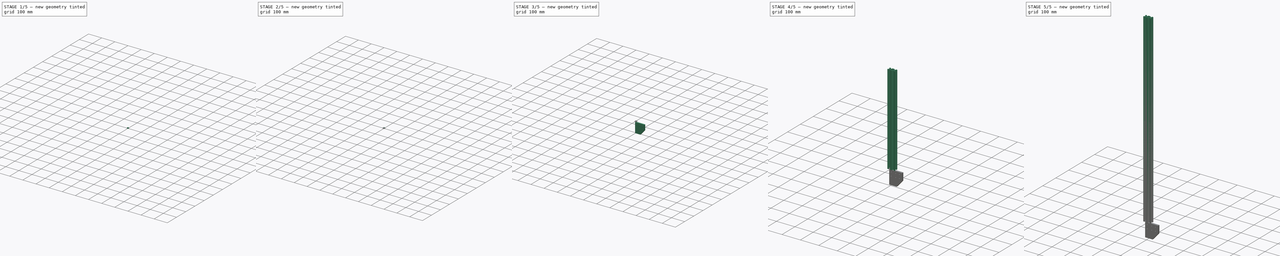
[diagram: build sequence overview — one tinted view per stage of 5, left to right]
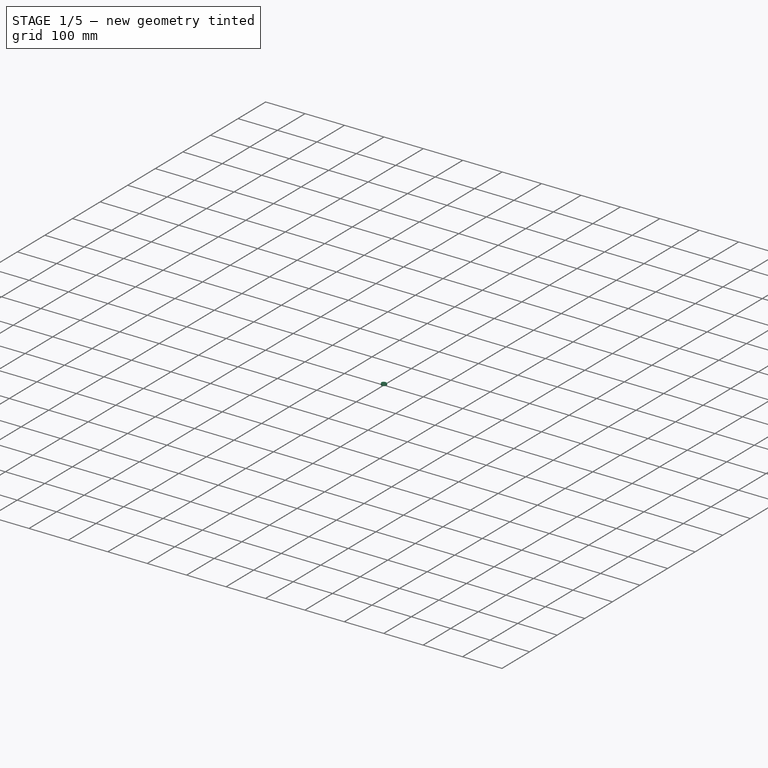
[diagram: stage 1 of 5 — iso view after this stage's code; geometry added in this stage tinted green]
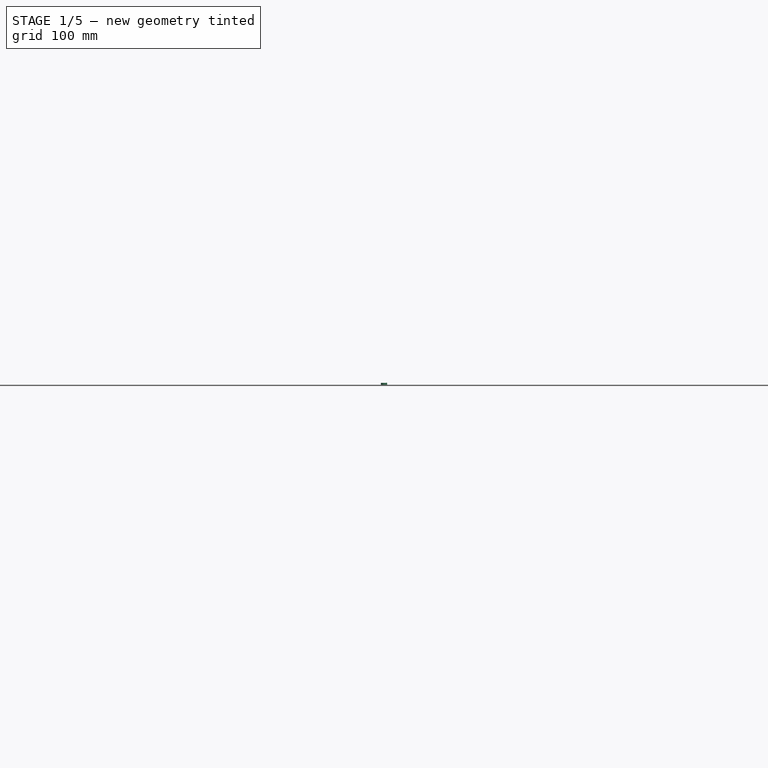
[diagram: stage 1 of 5 — front view after this stage's code; geometry added in this stage tinted green]
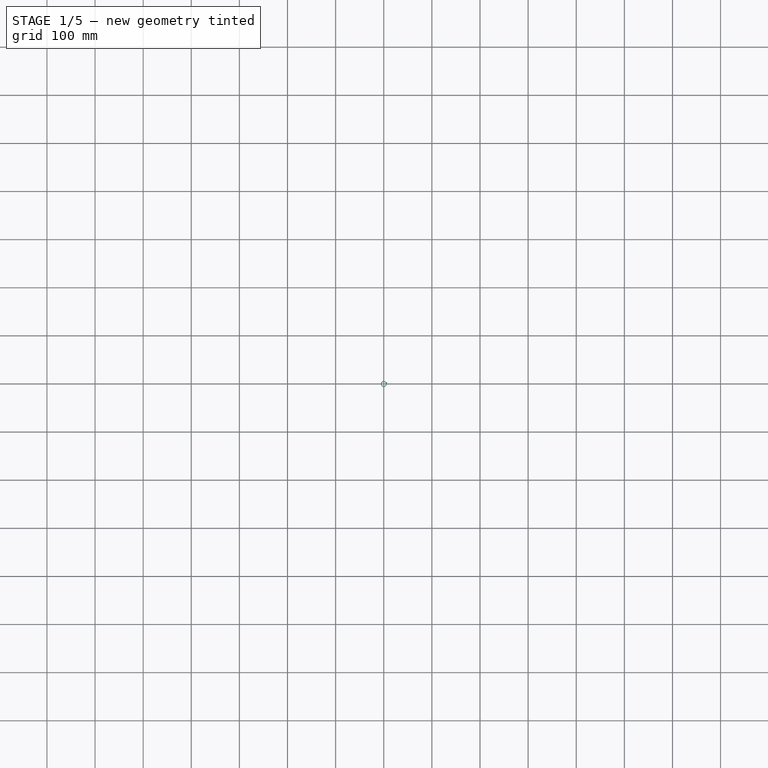
[diagram: stage 1 of 5 — top view after this stage's code; geometry added in this stage tinted green]
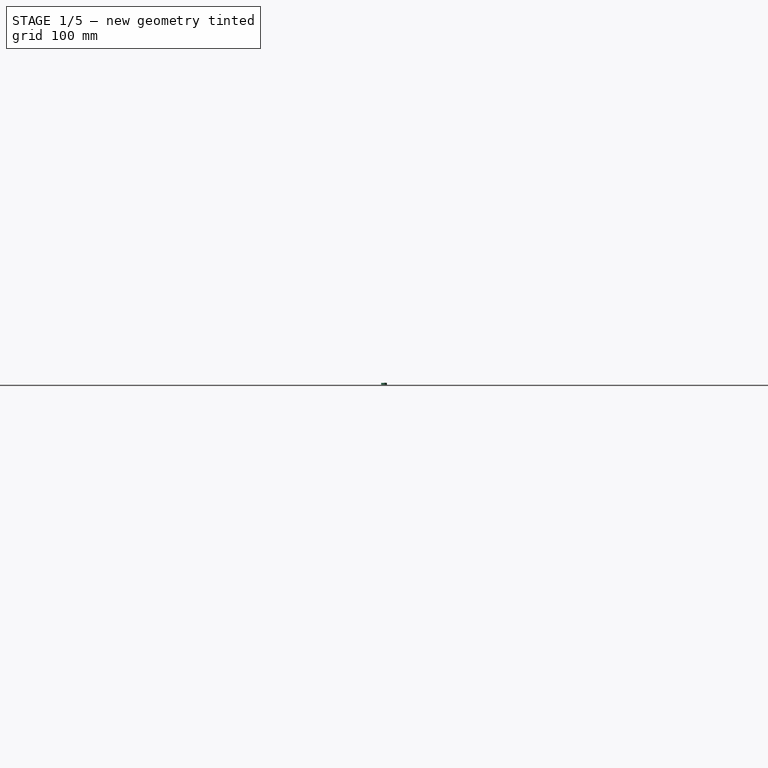
[diagram: stage 1 of 5 — right view after this stage's code; geometry added in this stage tinted green]
FCSTD DOCUMENT  (FreeCAD 0.19R23578 (Git))
Label: graveuse_Laser
License: All rights reserved
LicenseURL: http://en.wikipedia.org/wiki/All_rights_reserved
objects: Sketcher::SketchObject×12, App::Part×9, PartDesign::Pad×8, PartDesign::Body×8, Part::Cylinder×8, PartDesign::Chamfer×4, PartDesign::Fillet×4, PartDesign::Pocket×4, Part::Cut×4, Part::Chamfer×2, Part::FeaturePython×1, Part::MultiFuse×1
note: 76 computed .brp shape members not serialized (recipe doc carries the construction recipe); baked Part::Feature solids carry a one-line shape summary decoded from their .brp

FEATURE [Part::Cylinder] Cylinder004  label="Cilindro002"
  Angle = 39
  AttacherType = Attacher::AttachEngine3D
  Height = 5
  Radius = 7
FEATURE [Part::Cylinder] Cylinder005  label="Cilindro003"
  Angle = 39
  AttacherType = Attacher::AttachEngine3D
  Height = 5
  Radius = 6
FEATURE [Part::Cut] Cut002
  Base = -> Cylinder004
  Tool = -> Cylinder005
FEATURE [Part::Chamfer] Chamfer005
  Base = -> Cut002
  Edges = 2 edges r=0.2: [Edge6,Edge11]
FEATURE [Part::Cylinder] Cylinder006  label="Cilindro004"
  Angle = 360
  AttacherType = Attacher::AttachEngine3D
  Height = 4.6
  Placement = pos=(0,0,0.2) rot=(0,0,1;0rad)
  Radius = 6
FEATURE [Part::Cylinder] Cylinder007  label="Cilindro005"
  Angle = 360
  AttacherType = Attacher::AttachEngine3D
  Height = 4.6
  Placement = pos=(0,0,0.2) rot=(0,0,1;0rad)
  Radius = 4.5
FEATURE [Part::Cut] Cut003
  Base = -> Cylinder006
  Tool = -> Cylinder007
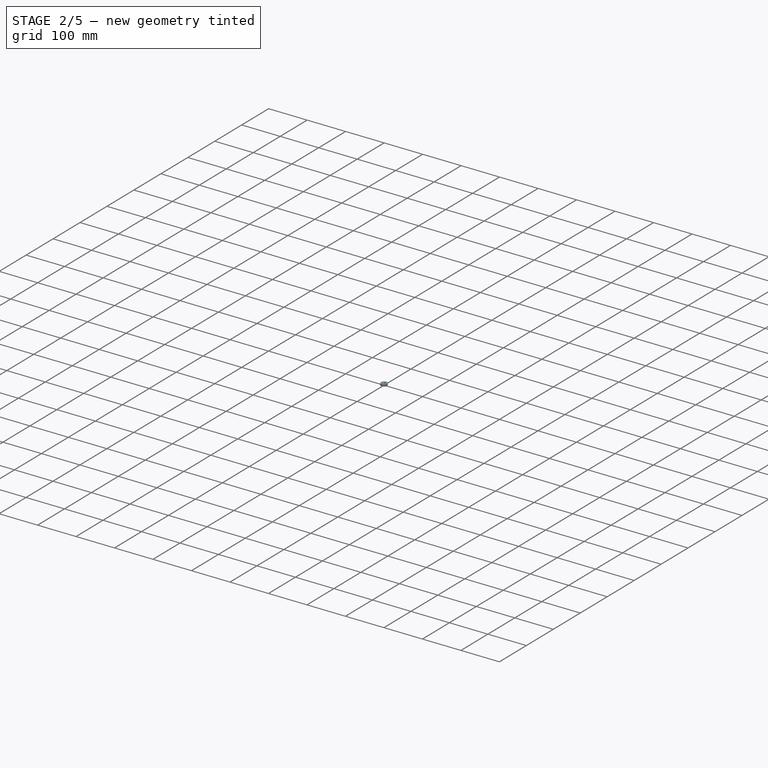
[diagram: stage 2 of 5 — iso view after this stage's code; geometry added in this stage tinted green]
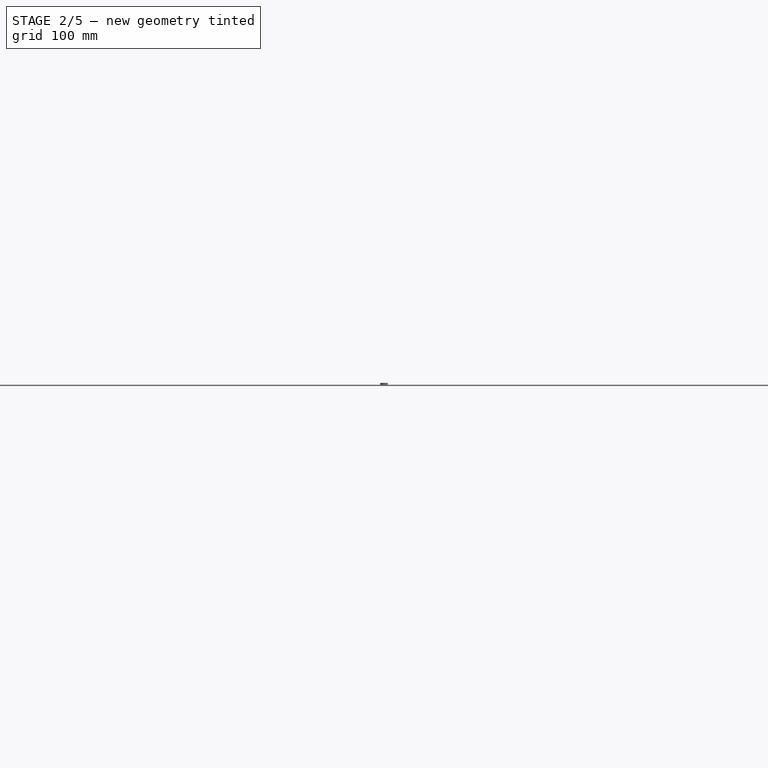
[diagram: stage 2 of 5 — front view after this stage's code; geometry added in this stage tinted green]
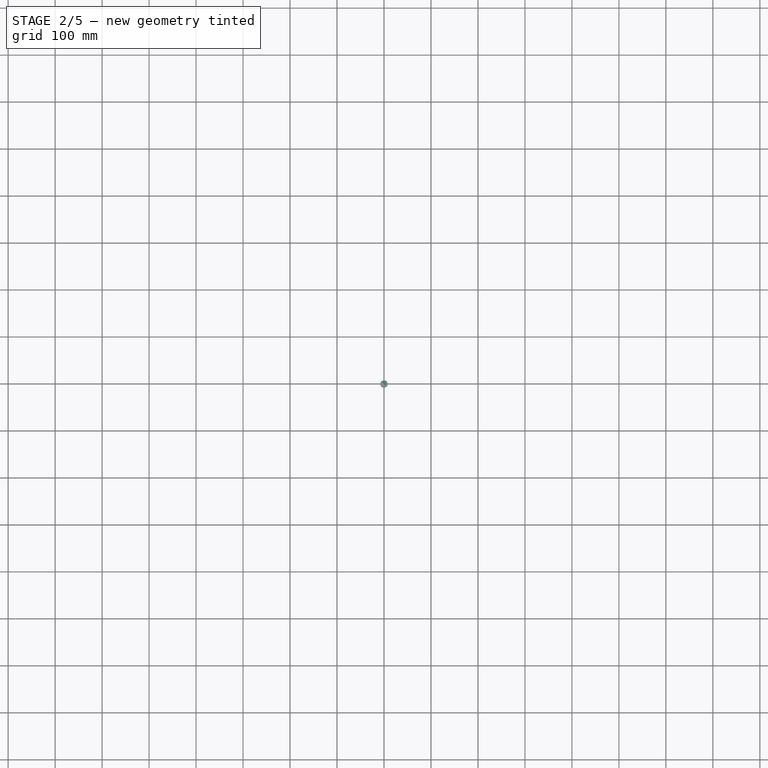
[diagram: stage 2 of 5 — top view after this stage's code; geometry added in this stage tinted green]
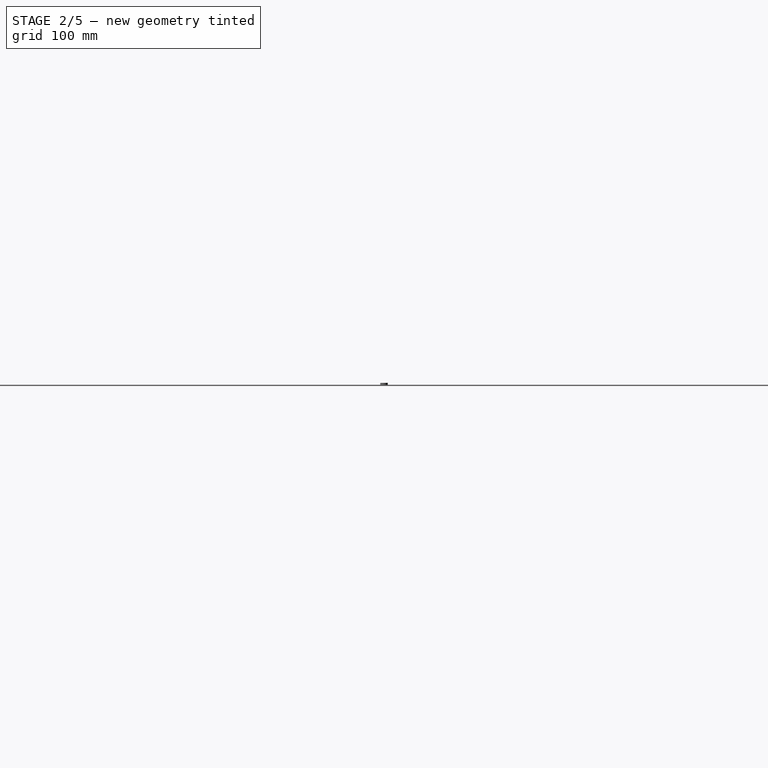
[diagram: stage 2 of 5 — right view after this stage's code; geometry added in this stage tinted green]
FEATURE [PartDesign::Body] Body004
  Group = -> [Sketch004,Pad004,Sketch005,Pocket]
  Origin = -> Origin009
  Tip = -> Pocket
FEATURE [App::Part] Part004
  Group = -> [Body004]
  Origin = -> Origin008
  Placement = pos=(-20,-10,10) rot=(0,0,1;0rad)
FEATURE [Part::Cylinder] Cylinder  label="Exterior"
  Angle = 360
  AttacherType = Attacher::AttachEngine3D
  Height = 5
  Radius = 8
FEATURE [Part::Cylinder] Cylinder001  label="Interior"
  Angle = 360
  AttacherType = Attacher::AttachEngine3D
  Height = 5
  Radius = 2.5
FEATURE [Part::Cylinder] Cylinder002  label="Cilindro"
  Angle = 360
  AttacherType = Attacher::AttachEngine3D
  Height = 5
  Radius = 7
FEATURE [Part::Cylinder] Cylinder003  label="Cilindro001"
  Angle = 360
  AttacherType = Attacher::AttachEngine3D
  Height = 5
  Radius = 4.5
FEATURE [Part::Cut] Cut001  label="Interior001"
  Base = -> Cylinder003
  Tool = -> Cylinder001
FEATURE [Part::FeaturePython] Array  # Draft array (typed FeaturePython)
  Angle = 360
  ArrayType = 1
  Axis = (0,0,1)
  Base = -> Chamfer005
  Center = (0,0,0)
  IntervalX = (1,0,0)
  IntervalY = (0,1,0)
  IntervalZ = (0,0,1)
  NumberPolar = 9
  NumberX = 2
  NumberY = 2
  NumberZ = 1
FEATURE [Part::MultiFuse] Fusion  label="Medio"
  Shapes = -> [Array,Cut003]
FEATURE [App::Part] Part008
  Group = -> [Cylinder001,Cylinder003,Cut001,Cylinder,Cylinder002,Cut,Chamfer004,Cylinder004,Cylinder005,Cut002,Chamfer005,Array,Cylinder006,Cylinder007,Cut003,Fusion]
  Origin = -> Origin016
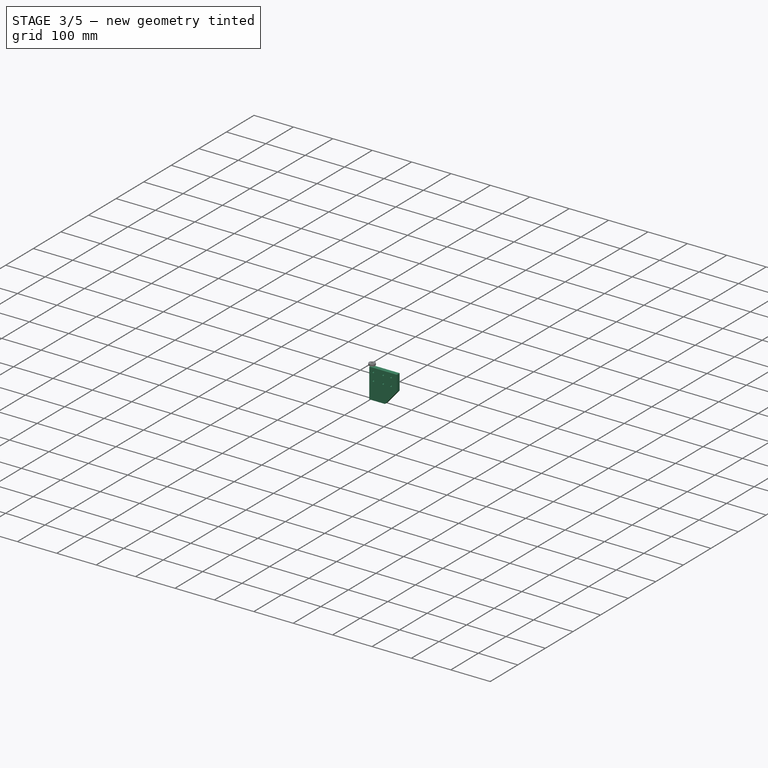
[diagram: stage 3 of 5 — iso view after this stage's code; geometry added in this stage tinted green]
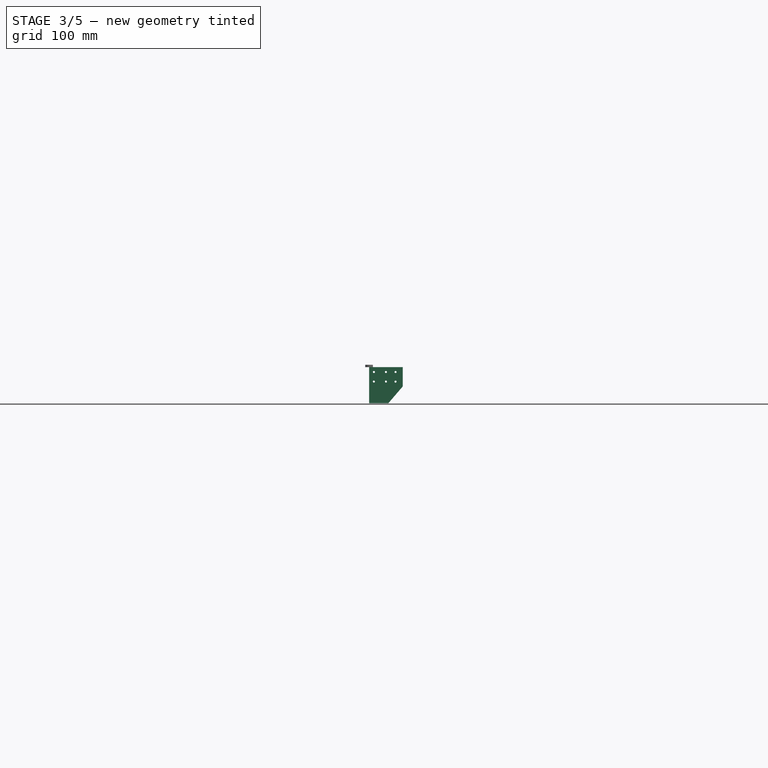
[diagram: stage 3 of 5 — front view after this stage's code; geometry added in this stage tinted green]
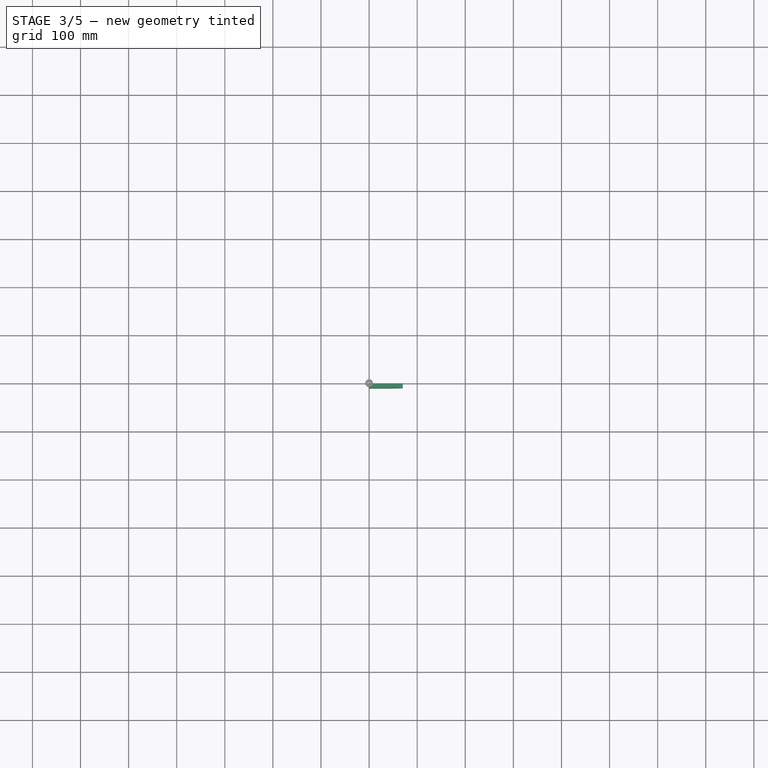
[diagram: stage 3 of 5 — top view after this stage's code; geometry added in this stage tinted green]
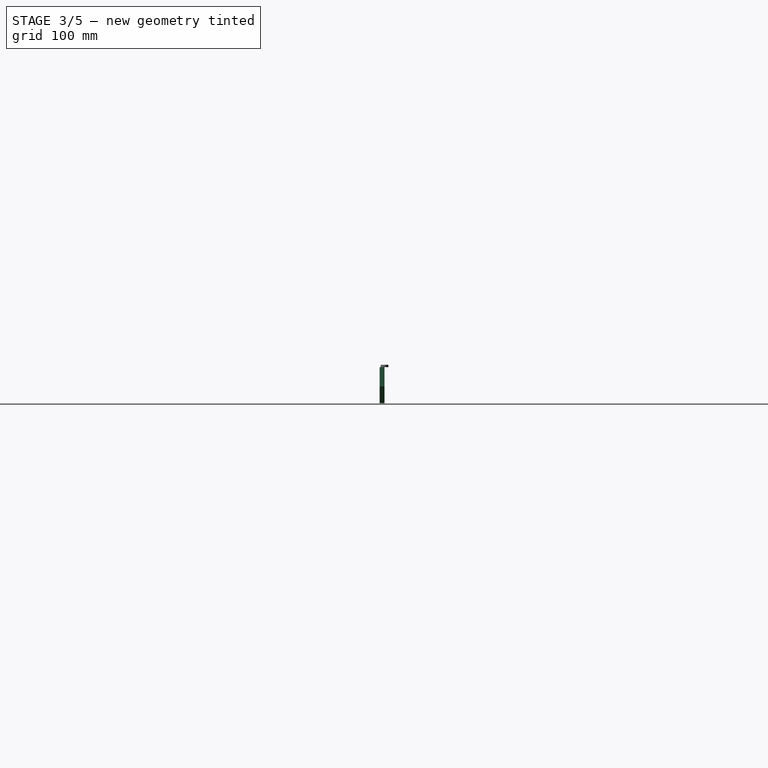
[diagram: stage 3 of 5 — right view after this stage's code; geometry added in this stage tinted green]
FEATURE [PartDesign::Body] Body003
  Group = -> [Sketch003,Pad003,Chamfer003,Fillet003]
  Origin = -> Origin007
  Tip = -> Fillet003
FEATURE [App::Part] Part003
  Group = -> [Body003]
  Origin = -> Origin006
  Placement = pos=(1010,-10,-20) rot=(-0.57735,-0.57735,-0.57735;2.0944rad)
FEATURE [Sketcher::SketchObject] Sketch004
  MapMode = 5
  Placement = pos=(0,0,0) rot=(1,0,0;1.5708rad)
  Support = -> [XZ_Plane009]
  sketch-geometry (5):
    g0: LineSegment StartX=0 StartY=0 StartZ=0 EndX=70 EndY=0 EndZ=0
    g1: LineSegment StartX=70 StartY=0 StartZ=0 EndX=70 EndY=-40 EndZ=0
    g2: LineSegment StartX=0 StartY=-75 StartZ=0 EndX=0 EndY=0 EndZ=0
    g3: LineSegment StartX=0 StartY=-75 StartZ=0 EndX=40 EndY=-75 EndZ=0
    g4: LineSegment StartX=40 StartY=-75 StartZ=0 EndX=70 EndY=-40 EndZ=0
  constraints (14):
    c: Coincident(g0,g1)
    c: Coincident(g2,g0)
    c: Horizontal(g0)
    c: Vertical(g1)
    c: Vertical(g2)
    c: DistanceX(g0,g0) = 70
    c: DistanceY(g2,g2) = 75
    c: Coincident(g0,g-1)
    c: Coincident(g2,g3)
    c: Horizontal(g3)
    c: Coincident(g3,g4)
    c: Coincident(g4,g1)
    c: DistanceX(g3,g3) = 40
    c: DistanceY(g1,g1) = 40
FEATURE [PartDesign::Pad] Pad004
  Direction = (1,1,1)
  Length = 10
  Length2 = 100
  Placement = pos=(0,0,0) rot=(1,0,0;1.5708rad)
  Profile = -> Sketch004
  Type = 0
FEATURE [PartDesign::Body] Body005
  Group = -> [Sketch007,Pad005,Sketch006,Pocket001]
  Origin = -> Origin010
  Tip = -> Pocket001
FEATURE [App::Part] Part005
  Group = -> [Body005]
  Origin = -> Origin011
  Placement = pos=(-20,490,10) rot=(0,0,1;0rad)
FEATURE [Sketcher::SketchObject] Sketch009
  MapMode = 5
  Placement = pos=(0,0,0) rot=(1,0,0;1.5708rad)
  Support = -> [XZ_Plane013]
  sketch-geometry (5):
    g0: LineSegment StartX=0 StartY=0 StartZ=0 EndX=70 EndY=0 EndZ=0
    g1: LineSegment StartX=70 StartY=0 StartZ=0 EndX=70 EndY=-40 EndZ=0
    g2: LineSegment StartX=0 StartY=-75 StartZ=0 EndX=0 EndY=0 EndZ=0
    g3: LineSegment StartX=0 StartY=-75 StartZ=0 EndX=40 EndY=-75 EndZ=0
    g4: LineSegment StartX=40 StartY=-75 StartZ=0 EndX=70 EndY=-40 EndZ=0
  constraints (14):
    c: Coincident(g0,g1)
    c: Coincident(g2,g0)
    c: Horizontal(g0)
    c: Vertical(g1)
    c: Vertical(g2)
    c: DistanceX(g0,g0) = 70
    c: DistanceY(g2,g2) = 75
    c: Coincident(g0,g-1)
    c: Coincident(g2,g3)
    c: Horizontal(g3)
    c: Coincident(g3,g4)
    c: Coincident(g4,g1)
    c: DistanceX(g3,g3) = 40
    c: DistanceY(g1,g1) = 40
FEATURE [PartDesign::Pad] Pad006
  Direction = (1,1,1)
  Length = 10
  Length2 = 100
  Placement = pos=(0,0,0) rot=(1,0,0;1.5708rad)
  Profile = -> Sketch009
  Type = 0
FEATURE [Sketcher::SketchObject] Sketch008
  ExternalGeometry = -> [Pad006]
  MapMode = 5
  Placement = pos=(0,-1e-16,0) rot=(-1,0,0;1.5708rad)
  Support = -> [Pad006]
  sketch-geometry (10):
    g0: Circle CenterX=10 CenterY=30 CenterZ=0 NormalX=0 NormalY=0 NormalZ=1 AngleXU=0 Radius=2.1
    g1: Circle CenterX=10 CenterY=10 CenterZ=0 NormalX=0 NormalY=0 NormalZ=1 AngleXU=0 Radius=2.1
    g2: LineSegment StartX=10 StartY=30 StartZ=0 EndX=61.1117 EndY=30 EndZ=0
    g3: LineSegment StartX=10 StartY=10 StartZ=0 EndX=62.861 EndY=10 EndZ=0
    g4: Circle CenterX=35 CenterY=30 CenterZ=0 NormalX=0 NormalY=0 NormalZ=1 AngleXU=0 Radius=2.1
    g5: Circle CenterX=55 CenterY=30 CenterZ=0 NormalX=0 NormalY=0 NormalZ=1 AngleXU=0 Radius=2.1
    g6: Circle CenterX=35 CenterY=10 CenterZ=0 NormalX=0 NormalY=0 NormalZ=1 AngleXU=0 Radius=2.1
    g7: Circle CenterX=55 CenterY=10 CenterZ=0 NormalX=0 NormalY=0 NormalZ=1 AngleXU=0 Radius=2.1
    g8: LineSegment StartX=35 StartY=30 StartZ=0 EndX=35 EndY=10 EndZ=0
    g9: LineSegment StartX=55 StartY=30 StartZ=0 EndX=55 EndY=10 EndZ=0
  constraints (26):
    c: Equal(g0,g1)
    c: Diameter(g0) = 4.2
    c: DistanceX(g-1,g0) = 10
    c: DistanceX(g-1,g1) = 10
    c: Coincident(g2,g0)
    c: Horizontal(g2)
    c: Coincident(g3,g1)
    c: Horizontal(g3)
    c: PointOnObject(g4,g2)
    c: PointOnObject(g5,g2)
    c: PointOnObject(g6,g3)
    c: PointOnObject(g7,g3)
    c: Equal(g4,g5)
    c: Equal(g5,g7)
    c: Equal(g7,g6)
    c: Diameter(g4) = 4.2
    c: Coincident(g8,g4)
    c: Coincident(g8,g6)
    c: Vertical(g8)
    c: Coincident(g9,g5)
    c: Coincident(g9,g7)
    c: Vertical(g9)
    c: DistanceX(g5,g-3) = 15
    c: DistanceX(g4,g5) = 20
    c: DistanceY(g-1,g1) = 10
    c: DistanceY(g1,g0) = 20
FEATURE [PartDesign::Pocket] Pocket002
  BaseFeature = -> Pad006
  Length = 5
  Length2 = 100
  Placement = pos=(0,0,0) rot=(1,0,0;1.5708rad)
  Profile = -> Sketch008
  Type = 1
FEATURE [PartDesign::Body] Body006
  Group = -> [Sketch009,Pad006,Sketch008,Pocket002]
  Origin = -> Origin012
  Tip = -> Pocket002
FEATURE [App::Part] Part006
  Group = -> [Body006]
  Origin = -> Origin013
  Placement = pos=(1020,-20,10) rot=(0,0,1;3.14159rad)
FEATURE [Sketcher::SketchObject] Sketch011
  MapMode = 5
  Placement = pos=(0,0,0) rot=(1,0,0;1.5708rad)
  Support = -> [XZ_Plane015]
  sketch-geometry (5):
    g0: LineSegment StartX=0 StartY=0 StartZ=0 EndX=70 EndY=0 EndZ=0
    g1: LineSegment StartX=70 StartY=0 StartZ=0 EndX=70 EndY=-40 EndZ=0
    g2: LineSegment StartX=0 StartY=-75 StartZ=0 EndX=0 EndY=0 EndZ=0
    g3: LineSegment StartX=0 StartY=-75 StartZ=0 EndX=40 EndY=-75 EndZ=0
    g4: LineSegment StartX=40 StartY=-75 StartZ=0 EndX=70 EndY=-40 EndZ=0
  constraints (14):
    c: Coincident(g0,g1)
    c: Coincident(g2,g0)
    c: Horizontal(g0)
    c: Vertical(g1)
    c: Vertical(g2)
    c: DistanceX(g0,g0) = 70
    c: DistanceY(g2,g2) = 75
    c: Coincident(g0,g-1)
    c: Coincident(g2,g3)
    c: Horizontal(g3)
    c: Coincident(g3,g4)
    c: Coincident(g4,g1)
    c: DistanceX(g3,g3) = 40
    c: DistanceY(g1,g1) = 40
FEATURE [PartDesign::Pad] Pad007
  Direction = (1,1,1)
  Length = 10
  Length2 = 100
  Placement = pos=(0,0,0) rot=(1,0,0;1.5708rad)
  Profile = -> Sketch011
  Type = 0
FEATURE [Sketcher::SketchObject] Sketch010
  ExternalGeometry = -> [Pad007]
  MapMode = 5
  Placement = pos=(0,-1e-16,0) rot=(-1,0,0;1.5708rad)
  Support = -> [Pad007]
  sketch-geometry (10):
    g0: Circle CenterX=10 CenterY=30 CenterZ=0 NormalX=0 NormalY=0 NormalZ=1 AngleXU=0 Radius=2.1
    g1: Circle CenterX=10 CenterY=10 CenterZ=0 NormalX=0 NormalY=0 NormalZ=1 AngleXU=0 Radius=2.1
    g2: LineSegment StartX=10 StartY=30 StartZ=0 EndX=61.1117 EndY=30 EndZ=0
    g3: LineSegment StartX=10 StartY=10 StartZ=0 EndX=62.861 EndY=10 EndZ=0
    g4: Circle CenterX=35 CenterY=30 CenterZ=0 NormalX=0 NormalY=0 NormalZ=1 AngleXU=0 Radius=2.1
    g5: Circle CenterX=55 CenterY=30 CenterZ=0 NormalX=0 NormalY=0 NormalZ=1 AngleXU=0 Radius=2.1
    g6: Circle CenterX=35 CenterY=10 CenterZ=0 NormalX=0 NormalY=0 NormalZ=1 AngleXU=0 Radius=2.1
    g7: Circle CenterX=55 CenterY=10 CenterZ=0 NormalX=0 NormalY=0 NormalZ=1 AngleXU=0 Radius=2.1
    g8: LineSegment StartX=35 StartY=30 StartZ=0 EndX=35 EndY=10 EndZ=0
    g9: LineSegment StartX=55 StartY=30 StartZ=0 EndX=55 EndY=10 EndZ=0
  constraints (26):
    c: Equal(g0,g1)
    c: Diameter(g0) = 4.2
    c: DistanceX(g-1,g0) = 10
    c: DistanceX(g-1,g1) = 10
    c: Coincident(g2,g0)
    c: Horizontal(g2)
    c: Coincident(g3,g1)
    c: Horizontal(g3)
    c: PointOnObject(g4,g2)
    c: PointOnObject(g5,g2)
    c: PointOnObject(g6,g3)
    c: PointOnObject(g7,g3)
    c: Equal(g4,g5)
    c: Equal(g5,g7)
    c: Equal(g7,g6)
    c: Diameter(g4) = 4.2
    c: Coincident(g8,g4)
    c: Coincident(g8,g6)
    c: Vertical(g8)
    c: Coincident(g9,g5)
    c: Coincident(g9,g7)
    c: Vertical(g9)
    c: DistanceX(g5,g-3) = 15
    c: DistanceX(g4,g5) = 20
    c: DistanceY(g-1,g1) = 10
    c: DistanceY(g1,g0) = 20
FEATURE [PartDesign::Pocket] Pocket003
  BaseFeature = -> Pad007
  Length = 5
  Length2 = 100
  Placement = pos=(0,0,0) rot=(1,0,0;1.5708rad)
  Profile = -> Sketch010
  Type = 1
FEATURE [PartDesign::Body] Body007
  Group = -> [Sketch011,Pad007,Sketch010,Pocket003]
  Origin = -> Origin014
  Tip = -> Pocket003
FEATURE [App::Part] Part007
  Group = -> [Body007]
  Origin = -> Origin015
  Placement = pos=(1020,480,10) rot=(0,0,1;3.14159rad)
FEATURE [PartDesign::Pocket] Pocket
  BaseFeature = -> Pad004
  Length = 5
  Length2 = 100
  Placement = pos=(0,0,0) rot=(1,0,0;1.5708rad)
  Profile = -> Sketch005
  Type = 1
FEATURE [Part::Cut] Cut
  Base = -> Cylinder
  Tool = -> Cylinder002
FEATURE [Part::Chamfer] Chamfer004  label="Exterior001"
  Base = -> Cut
  Edges = 2 edges r=0.2: [Edge1,Edge3]
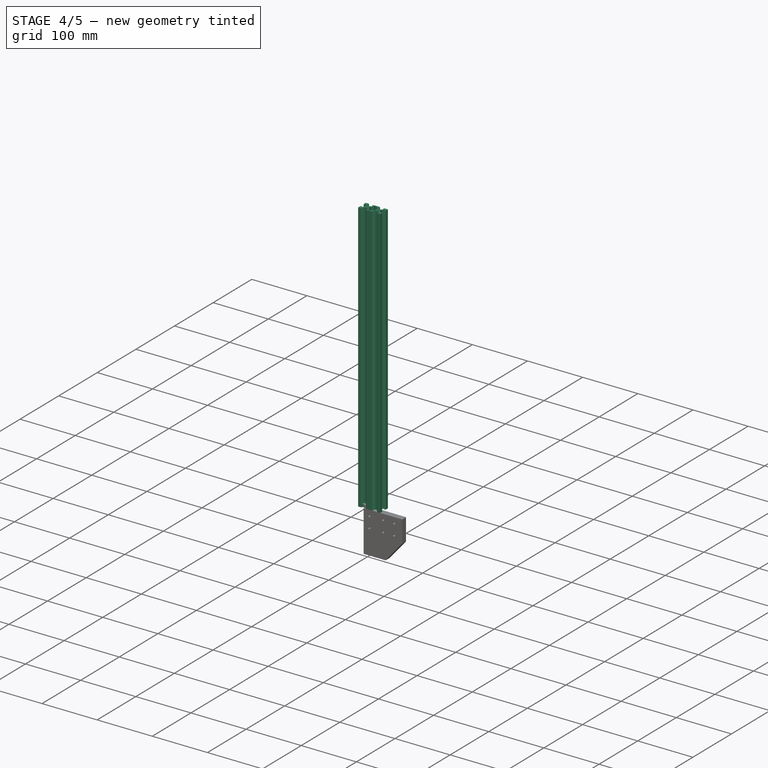
[diagram: stage 4 of 5 — iso view after this stage's code; geometry added in this stage tinted green]
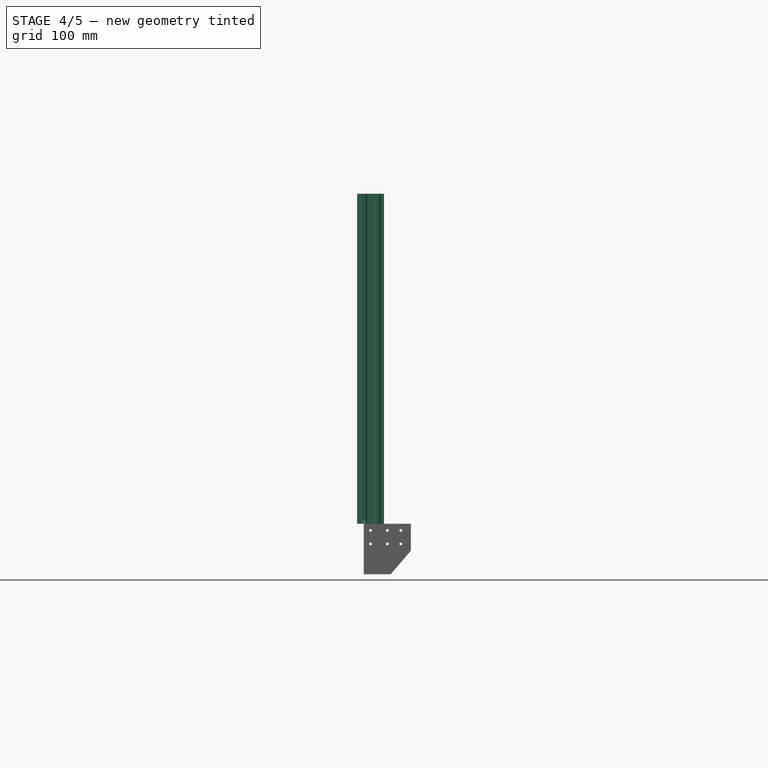
[diagram: stage 4 of 5 — front view after this stage's code; geometry added in this stage tinted green]
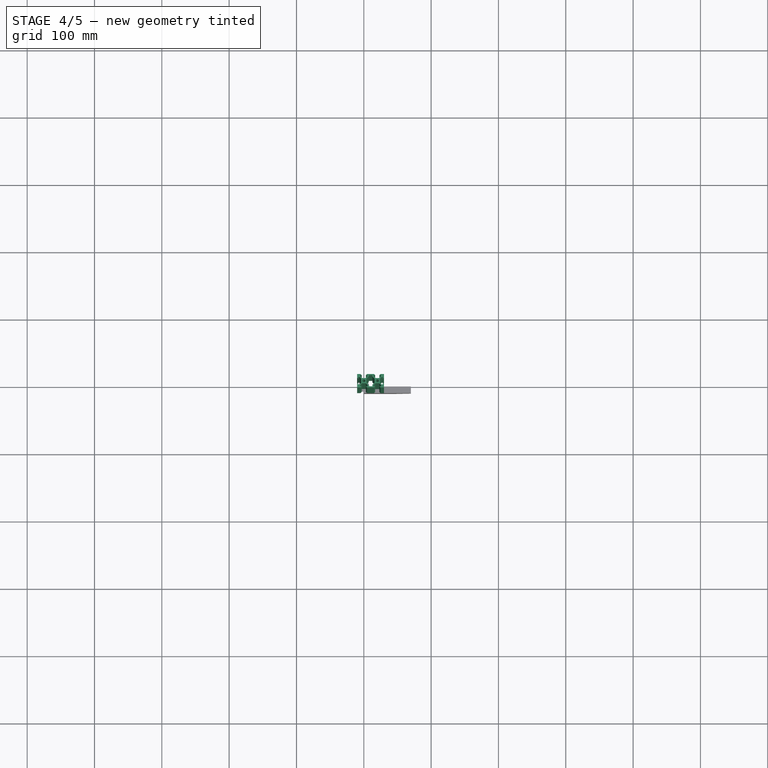
[diagram: stage 4 of 5 — top view after this stage's code; geometry added in this stage tinted green]
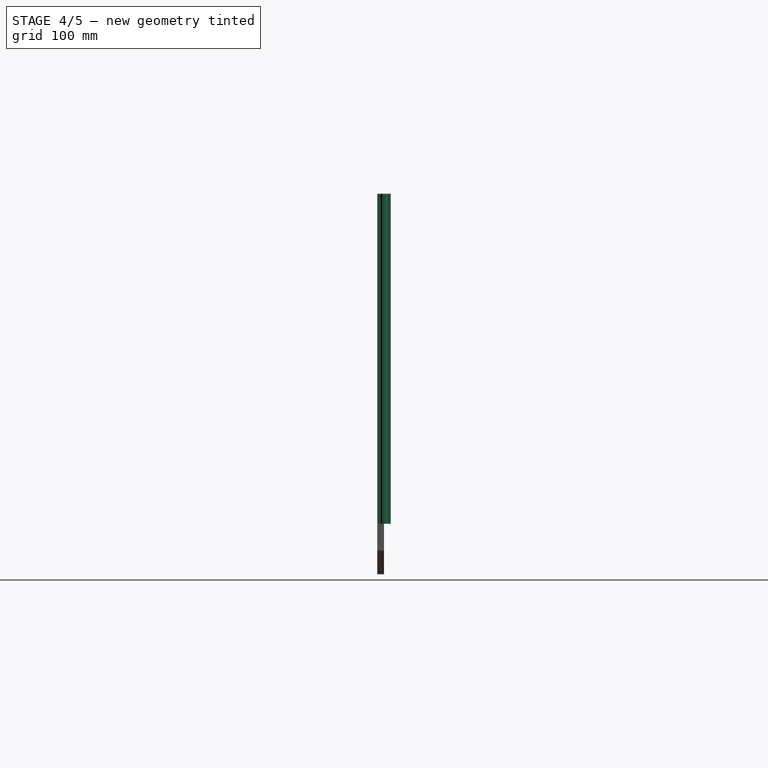
[diagram: stage 4 of 5 — right view after this stage's code; geometry added in this stage tinted green]
FEATURE [PartDesign::Body] Body001
  Group = -> [Sketch001,Pad001,Chamfer001,Fillet001]
  Origin = -> Origin003
  Tip = -> Fillet001
FEATURE [App::Part] Part001
  Group = -> [Body001]
  Origin = -> Origin002
  Placement = pos=(0,470,0) rot=(0,1,0;1.5708rad)
FEATURE [Sketcher::SketchObject] Sketch002
  MapMode = 5
  Support = -> [XY_Plane005]
  sketch-geometry (102):
    g0: LineSegment StartX=0 StartY=3.72388 StartZ=0 EndX=0.176777 EndY=3.90066 EndZ=0
    g1: LineSegment StartX=0.176777 StartY=3.90066 StartZ=0 EndX=2.84 EndY=3.90066 EndZ=0
    g2: LineSegment StartX=2.84 StartY=3.90066 StartZ=0 EndX=5.49934 EndY=6.56 EndZ=0
    g3: LineSegment StartX=5.49934 StartY=6.56 StartZ=0 EndX=5.49934 EndY=8.2 EndZ=0
    g4: LineSegment StartX=5.49934 StartY=8.2 StartZ=0 EndX=3.1 EndY=8.2 EndZ=0
    g5: LineSegment StartX=3.1 StartY=8.2 StartZ=0 EndX=3.1 EndY=10 EndZ=0
    g6: LineSegment StartX=3.1 StartY=10 StartZ=0 EndX=16.9 EndY=10 EndZ=0
    g7: LineSegment StartX=7.29934 StartY=6.23868 StartZ=0 EndX=3.90066 EndY=2.84 EndZ=0
    g8: LineSegment StartX=3.90066 StartY=2.84 StartZ=0 EndX=3.90066 EndY=0.176777 EndZ=0
    g9: LineSegment StartX=3.90066 StartY=0.176777 StartZ=0 EndX=3.72388 EndY=0 EndZ=0
    g10: LineSegment StartX=0 StartY=3.72388 StartZ=0 EndX=-0.176777 EndY=3.90066 EndZ=0
    g11: LineSegment StartX=-0.176777 StartY=3.90066 StartZ=0 EndX=-2.84 EndY=3.90066 EndZ=0
    g12: LineSegment StartX=-2.84 StartY=3.90066 StartZ=0 EndX=-5.49934 EndY=6.56 EndZ=0
    g13: LineSegment StartX=-5.49934 StartY=6.56 StartZ=0 EndX=-5.49934 EndY=8.2 EndZ=0
    g14: LineSegment StartX=-5.49934 StartY=8.2 StartZ=0 EndX=-3.1 EndY=8.2 EndZ=0
    g15: LineSegment StartX=-3.1 StartY=8.2 StartZ=0 EndX=-3.1 EndY=10 EndZ=0
    g16: LineSegment StartX=-3.1 StartY=10 StartZ=0 EndX=-10 EndY=10 EndZ=0
    g17: LineSegment StartX=-10 StartY=10 StartZ=0 EndX=-10 EndY=3.1 EndZ=0
    g18: LineSegment StartX=-10 StartY=3.1 StartZ=0 EndX=-8.2 EndY=3.1 EndZ=0
    g19: LineSegment StartX=-8.2 StartY=3.1 StartZ=0 EndX=-8.2 EndY=5.49934 EndZ=0
    g20: LineSegment StartX=-8.2 StartY=5.49934 StartZ=0 EndX=-6.56 EndY=5.49934 EndZ=0
    g21: LineSegment StartX=-6.56 StartY=5.49934 StartZ=0 EndX=-3.90066 EndY=2.84 EndZ=0
    g22: LineSegment StartX=-3.90066 StartY=2.84 StartZ=0 EndX=-3.90066 EndY=0.176777 EndZ=0
    g23: LineSegment StartX=-3.90066 StartY=0.176777 StartZ=0 EndX=-3.72388 EndY=0 EndZ=0
    g24: LineSegment StartX=0 StartY=-3.72388 StartZ=0 EndX=0.176777 EndY=-3.90066 EndZ=0
    g25: LineSegment StartX=0.176777 StartY=-3.90066 StartZ=0 EndX=2.84 EndY=-3.90066 EndZ=0
    g26: LineSegment StartX=2.84 StartY=-3.90066 StartZ=0 EndX=5.49934 EndY=-6.56 EndZ=0
    g27: LineSegment StartX=5.49934 StartY=-6.56 StartZ=0 EndX=5.49934 EndY=-8.2 EndZ=0
    g28: LineSegment StartX=5.49934 StartY=-8.2 StartZ=0 EndX=3.1 EndY=-8.2 EndZ=0
    g29: LineSegment StartX=3.1 StartY=-8.2 StartZ=0 EndX=3.1 EndY=-10 EndZ=0
    g30: LineSegment StartX=3.1 StartY=-10 StartZ=0 EndX=16.9 EndY=-10 EndZ=0
    g31: LineSegment StartX=7.29934 StartY=-6.23868 StartZ=0 EndX=3.90066 EndY=-2.84 EndZ=0
    g32: LineSegment StartX=3.90066 StartY=-2.84 StartZ=0 EndX=3.90066 EndY=-0.176777 EndZ=0
    g33: LineSegment StartX=3.90066 StartY=-0.176777 StartZ=0 EndX=3.72388 EndY=0 EndZ=0
    g34: LineSegment StartX=0 StartY=-3.72388 StartZ=0 EndX=-0.176777 EndY=-3.90066 EndZ=0
    g35: LineSegment StartX=-0.176777 StartY=-3.90066 StartZ=0 EndX=-2.84 EndY=-3.90066 EndZ=0
    g36: LineSegment StartX=-2.84 StartY=-3.90066 StartZ=0 EndX=-5.49934 EndY=-6.56 EndZ=0
    g37: LineSegment StartX=-5.49934 StartY=-6.56 StartZ=0 EndX=-5.49934 EndY=-8.2 EndZ=0
    g38: LineSegment StartX=-5.49934 StartY=-8.2 StartZ=0 EndX=-3.1 EndY=-8.2 EndZ=0
    g39: LineSegment StartX=-3.1 StartY=-8.2 StartZ=0 EndX=-3.1 EndY=-10 EndZ=0
    g40: LineSegment StartX=-3.1 StartY=-10 StartZ=0 EndX=-10 EndY=-10 EndZ=0
    g41: LineSegment StartX=-10 StartY=-10 StartZ=0 EndX=-10 EndY=-3.1 EndZ=0
    g42: LineSegment StartX=-10 StartY=-3.1 StartZ=0 EndX=-8.2 EndY=-3.1 EndZ=0
    g43: LineSegment StartX=-8.2 StartY=-3.1 StartZ=0 EndX=-8.2 EndY=-5.49934 EndZ=0
    g44: LineSegment StartX=-8.2 StartY=-5.49934 StartZ=0 EndX=-6.56 EndY=-5.49934 EndZ=0
    g45: LineSegment StartX=-6.56 StartY=-5.49934 StartZ=0 EndX=-3.90066 EndY=-2.84 EndZ=0
    g46: LineSegment StartX=-3.90066 StartY=-2.84 StartZ=0 EndX=-3.90066 EndY=-0.176777 EndZ=0
    g47: LineSegment StartX=-3.90066 StartY=-0.176777 StartZ=0 EndX=-3.72388 EndY=0 EndZ=0
    g48: Circle CenterX=0 CenterY=0 CenterZ=0 NormalX=0 NormalY=0 NormalZ=1 AngleXU=0 Radius=2.1
    g49: LineSegment StartX=20 StartY=3.72388 StartZ=0 EndX=19.8232 EndY=3.90066 EndZ=0
    g50: LineSegment StartX=19.8232 StartY=3.90066 StartZ=0 EndX=17.16 EndY=3.90066 EndZ=0
    g51: LineSegment StartX=17.16 StartY=3.90066 StartZ=0 EndX=14.5007 EndY=6.56 EndZ=0
    g52: LineSegment StartX=14.5007 StartY=6.56 StartZ=0 EndX=14.5007 EndY=8.2 EndZ=0
    g53: LineSegment StartX=14.5007 StartY=8.2 StartZ=0 EndX=16.9 EndY=8.2 EndZ=0
    g54: LineSegment StartX=16.9 StartY=8.2 StartZ=0 EndX=16.9 EndY=10 EndZ=0
    g55: LineSegment StartX=12.7007 StartY=6.23868 StartZ=0 EndX=16.0993 EndY=2.84 EndZ=0
    g56: LineSegment StartX=16.0993 StartY=2.84 StartZ=0 EndX=16.0993 EndY=0.176777 EndZ=0
    g57: LineSegment StartX=16.0993 StartY=0.176777 StartZ=0 EndX=16.2761 EndY=3.6e-15 EndZ=0
    g58: LineSegment StartX=20 StartY=3.72388 StartZ=0 EndX=20.1768 EndY=3.90066 EndZ=0
    g59: LineSegment StartX=20.1768 StartY=3.90066 StartZ=0 EndX=22.84 EndY=3.90066 EndZ=0
    g60: LineSegment StartX=22.84 StartY=3.90066 StartZ=0 EndX=25.4993 EndY=6.56 EndZ=0
    g61: LineSegment StartX=25.4993 StartY=6.56 StartZ=0 EndX=25.4993 EndY=8.2 EndZ=0
    g62: LineSegment StartX=25.4993 StartY=8.2 StartZ=0 EndX=23.1 EndY=8.2 EndZ=0
    g63: LineSegment StartX=23.1 StartY=8.2 StartZ=0 EndX=23.1 EndY=10 EndZ=0
    g64: LineSegment StartX=23.1 StartY=10 StartZ=0 EndX=30 EndY=10 EndZ=0
    g65: LineSegment StartX=30 StartY=10 StartZ=0 EndX=30 EndY=3.1 EndZ=0
    g66: LineSegment StartX=30 StartY=3.1 StartZ=0 EndX=28.2 EndY=3.1 EndZ=0
    g67: LineSegment StartX=28.2 StartY=3.1 StartZ=0 EndX=28.2 EndY=5.49934 EndZ=0
    g68: LineSegment StartX=28.2 StartY=5.49934 StartZ=0 EndX=26.56 EndY=5.49934 EndZ=0
    g69: LineSegment StartX=26.56 StartY=5.49934 StartZ=0 EndX=23.9007 EndY=2.84 EndZ=0
    g70: LineSegment StartX=23.9007 StartY=2.84 StartZ=0 EndX=23.9007 EndY=0.176777 EndZ=0
    g71: LineSegment StartX=23.9007 StartY=0.176777 StartZ=0 EndX=23.7239 EndY=3.6e-15 EndZ=0
    g72: LineSegment StartX=20 StartY=-3.72388 StartZ=0 EndX=19.8232 EndY=-3.90066 EndZ=0
    g73: LineSegment StartX=19.8232 StartY=-3.90066 StartZ=0 EndX=17.16 EndY=-3.90066 EndZ=0
    g74: LineSegment StartX=17.16 StartY=-3.90066 StartZ=0 EndX=14.5007 EndY=-6.56 EndZ=0
    g75: LineSegment StartX=14.5007 StartY=-6.56 StartZ=0 EndX=14.5007 EndY=-8.2 EndZ=0
    g76: LineSegment StartX=14.5007 StartY=-8.2 StartZ=0 EndX=16.9 EndY=-8.2 EndZ=0
    g77: LineSegment StartX=16.9 StartY=-8.2 StartZ=0 EndX=16.9 EndY=-10 EndZ=0
    g78: LineSegment StartX=12.7007 StartY=-6.23868 StartZ=0 EndX=16.0993 EndY=-2.84 EndZ=0
    g79: LineSegment StartX=16.0993 StartY=-2.84 StartZ=0 EndX=16.0993 EndY=-0.176777 EndZ=0
    g80: LineSegment StartX=16.0993 StartY=-0.176777 StartZ=0 EndX=16.2761 EndY=3.6e-15 EndZ=0
    g81: LineSegment StartX=20 StartY=-3.72388 StartZ=0 EndX=20.1768 EndY=-3.90066 EndZ=0
    g82: LineSegment StartX=20.1768 StartY=-3.90066 StartZ=0 EndX=22.84 EndY=-3.90066 EndZ=0
    g83: LineSegment StartX=22.84 StartY=-3.90066 StartZ=0 EndX=25.4993 EndY=-6.56 EndZ=0
    g84: LineSegment StartX=25.4993 StartY=-6.56 StartZ=0 EndX=25.4993 EndY=-8.2 EndZ=0
    g85: LineSegment StartX=25.4993 StartY=-8.2 StartZ=0 EndX=23.1 EndY=-8.2 EndZ=0
    g86: LineSegment StartX=23.1 StartY=-8.2 StartZ=0 EndX=23.1 EndY=-10 EndZ=0
    g87: LineSegment StartX=23.1 StartY=-10 StartZ=0 EndX=30 EndY=-10 EndZ=0
    g88: LineSegment StartX=30 StartY=-10 StartZ=0 EndX=30 EndY=-3.1 EndZ=0
    g89: LineSegment StartX=30 StartY=-3.1 StartZ=0 EndX=28.2 EndY=-3.1 EndZ=0
    g90: LineSegment StartX=28.2 StartY=-3.1 StartZ=0 EndX=28.2 EndY=-5.49934 EndZ=0
    g91: LineSegment StartX=28.2 StartY=-5.49934 StartZ=0 EndX=26.56 EndY=-5.49934 EndZ=0
    g92: LineSegment StartX=26.56 StartY=-5.49934 StartZ=0 EndX=23.9007 EndY=-2.84 EndZ=0
    g93: LineSegment StartX=23.9007 StartY=-2.84 StartZ=0 EndX=23.9007 EndY=-0.176777 EndZ=0
    g94: LineSegment StartX=23.9007 StartY=-0.176777 StartZ=0 EndX=23.7239 EndY=3.6e-15 EndZ=0
    g95: Circle CenterX=20 CenterY=3.6e-15 CenterZ=0 NormalX=0 NormalY=0 NormalZ=1 AngleXU=0 Radius=2.1
    g96: LineSegment StartX=7.29934 StartY=-6.23868 StartZ=0 EndX=7.29934 EndY=-8.2 EndZ=0
    g97: LineSegment StartX=7.29934 StartY=-8.2 StartZ=0 EndX=12.7007 EndY=-8.2 EndZ=0
    g98: LineSegment StartX=12.7007 StartY=-8.2 StartZ=0 EndX=12.7007 EndY=-6.23868 EndZ=0
    g99: LineSegment StartX=7.29934 StartY=6.23868 StartZ=0 EndX=7.29934 EndY=8.2 EndZ=0
    g100: LineSegment StartX=7.29934 StartY=8.2 StartZ=0 EndX=12.7007 EndY=8.2 EndZ=0
    g101: LineSegment StartX=12.7007 StartY=8.2 StartZ=0 EndX=12.7007 EndY=6.23868 EndZ=0
  constraints (20):
    c: Block(g74)
    c: Block(g75)
    c: Block(g79)
    c: Block(g32)
    c: Block(g26)
    c: Block(g27)
    c: Coincident(g97,g96)
    c: Vertical(g96)
    c: Vertical(g98)
    c: Coincident(g98,g97)
    c: Horizontal(g97)
    c: Horizontal(g100)
    c: Parallel(g26,g31)
    c: Parallel(g74,g78)
    c: DistanceX(g27,g96) = 1.8
    c: Coincident(g31,g96)
    c: Coincident(g32,g31)
    c: DistanceX(g97,g75) = 1.8
    c: Coincident(g78,g98)
    c: Coincident(g79,g78)
FEATURE [PartDesign::Pad] Pad002
  Direction = (1,1,1)
  Length = 490
  Length2 = 100
  Profile = -> Sketch002
  Type = 0
FEATURE [PartDesign::Chamfer] Chamfer002
  Angle = 45
  Base = -> Pad002 [Edge146,Edge143,Edge107,Edge182,Edge101,Edge65,Edge59,Edge23,Edge20,Edge230,Edge188,Edge224]
  BaseFeature = -> Pad002
  ChamferType = 2
  FlipDirection = false
  Size = 1.7
  Size2 = 1
  SupportTransform = false
FEATURE [PartDesign::Body] Body002
  Group = -> [Sketch002,Pad002,Chamfer002,Fillet002]
  Origin = -> Origin005
  Tip = -> Fillet002
FEATURE [App::Part] Part002
  Group = -> [Body002]
  Origin = -> Origin004
  Placement = pos=(-10,-10,-20) rot=(-0.57735,-0.57735,-0.57735;2.0944rad)
FEATURE [Sketcher::SketchObject] Sketch003
  MapMode = 5
  Support = -> [XY_Plane007]
  sketch-geometry (102):
    g0: LineSegment StartX=0 StartY=3.72388 StartZ=0 EndX=0.176777 EndY=3.90066 EndZ=0
    g1: LineSegment StartX=0.176777 StartY=3.90066 StartZ=0 EndX=2.84 EndY=3.90066 EndZ=0
    g2: LineSegment StartX=2.84 StartY=3.90066 StartZ=0 EndX=5.49934 EndY=6.56 EndZ=0
    g3: LineSegment StartX=5.49934 StartY=6.56 StartZ=0 EndX=5.49934 EndY=8.2 EndZ=0
    g4: LineSegment StartX=5.49934 StartY=8.2 StartZ=0 EndX=3.1 EndY=8.2 EndZ=0
    g5: LineSegment StartX=3.1 StartY=8.2 StartZ=0 EndX=3.1 EndY=10 EndZ=0
    g6: LineSegment StartX=3.1 StartY=10 StartZ=0 EndX=16.9 EndY=10 EndZ=0
    g7: LineSegment StartX=7.29934 StartY=6.23868 StartZ=0 EndX=3.90066 EndY=2.84 EndZ=0
    g8: LineSegment StartX=3.90066 StartY=2.84 StartZ=0 EndX=3.90066 EndY=0.176777 EndZ=0
    g9: LineSegment StartX=3.90066 StartY=0.176777 StartZ=0 EndX=3.72388 EndY=0 EndZ=0
    g10: LineSegment StartX=0 StartY=3.72388 StartZ=0 EndX=-0.176777 EndY=3.90066 EndZ=0
    g11: LineSegment StartX=-0.176777 StartY=3.90066 StartZ=0 EndX=-2.84 EndY=3.90066 EndZ=0
    g12: LineSegment StartX=-2.84 StartY=3.90066 StartZ=0 EndX=-5.49934 EndY=6.56 EndZ=0
    g13: LineSegment StartX=-5.49934 StartY=6.56 StartZ=0 EndX=-5.49934 EndY=8.2 EndZ=0
    g14: LineSegment StartX=-5.49934 StartY=8.2 StartZ=0 EndX=-3.1 EndY=8.2 EndZ=0
    g15: LineSegment StartX=-3.1 StartY=8.2 StartZ=0 EndX=-3.1 EndY=10 EndZ=0
    g16: LineSegment StartX=-3.1 StartY=10 StartZ=0 EndX=-10 EndY=10 EndZ=0
    g17: LineSegment StartX=-10 StartY=10 StartZ=0 EndX=-10 EndY=3.1 EndZ=0
    g18: LineSegment StartX=-10 StartY=3.1 StartZ=0 EndX=-8.2 EndY=3.1 EndZ=0
    g19: LineSegment StartX=-8.2 StartY=3.1 StartZ=0 EndX=-8.2 EndY=5.49934 EndZ=0
    g20: LineSegment StartX=-8.2 StartY=5.49934 StartZ=0 EndX=-6.56 EndY=5.49934 EndZ=0
    g21: LineSegment StartX=-6.56 StartY=5.49934 StartZ=0 EndX=-3.90066 EndY=2.84 EndZ=0
    g22: LineSegment StartX=-3.90066 StartY=2.84 StartZ=0 EndX=-3.90066 EndY=0.176777 EndZ=0
    g23: LineSegment StartX=-3.90066 StartY=0.176777 StartZ=0 EndX=-3.72388 EndY=0 EndZ=0
    g24: LineSegment StartX=0 StartY=-3.72388 StartZ=0 EndX=0.176777 EndY=-3.90066 EndZ=0
    g25: LineSegment StartX=0.176777 StartY=-3.90066 StartZ=0 EndX=2.84 EndY=-3.90066 EndZ=0
    g26: LineSegment StartX=2.84 StartY=-3.90066 StartZ=0 EndX=5.49934 EndY=-6.56 EndZ=0
    g27: LineSegment StartX=5.49934 StartY=-6.56 StartZ=0 EndX=5.49934 EndY=-8.2 EndZ=0
    g28: LineSegment StartX=5.49934 StartY=-8.2 StartZ=0 EndX=3.1 EndY=-8.2 EndZ=0
    g29: LineSegment StartX=3.1 StartY=-8.2 StartZ=0 EndX=3.1 EndY=-10 EndZ=0
    g30: LineSegment StartX=3.1 StartY=-10 StartZ=0 EndX=16.9 EndY=-10 EndZ=0
    g31: LineSegment StartX=7.29934 StartY=-6.23868 StartZ=0 EndX=3.90066 EndY=-2.84 EndZ=0
    g32: LineSegment StartX=3.90066 StartY=-2.84 StartZ=0 EndX=3.90066 EndY=-0.176777 EndZ=0
    g33: LineSegment StartX=3.90066 StartY=-0.176777 StartZ=0 EndX=3.72388 EndY=0 EndZ=0
    g34: LineSegment StartX=0 StartY=-3.72388 StartZ=0 EndX=-0.176777 EndY=-3.90066 EndZ=0
    g35: LineSegment StartX=-0.176777 StartY=-3.90066 StartZ=0 EndX=-2.84 EndY=-3.90066 EndZ=0
    g36: LineSegment StartX=-2.84 StartY=-3.90066 StartZ=0 EndX=-5.49934 EndY=-6.56 EndZ=0
    g37: LineSegment StartX=-5.49934 StartY=-6.56 StartZ=0 EndX=-5.49934 EndY=-8.2 EndZ=0
    g38: LineSegment StartX=-5.49934 StartY=-8.2 StartZ=0 EndX=-3.1 EndY=-8.2 EndZ=0
    g39: LineSegment StartX=-3.1 StartY=-8.2 StartZ=0 EndX=-3.1 EndY=-10 EndZ=0
    g40: LineSegment StartX=-3.1 StartY=-10 StartZ=0 EndX=-10 EndY=-10 EndZ=0
    g41: LineSegment StartX=-10 StartY=-10 StartZ=0 EndX=-10 EndY=-3.1 EndZ=0
    g42: LineSegment StartX=-10 StartY=-3.1 StartZ=0 EndX=-8.2 EndY=-3.1 EndZ=0
    g43: LineSegment StartX=-8.2 StartY=-3.1 StartZ=0 EndX=-8.2 EndY=-5.49934 EndZ=0
    g44: LineSegment StartX=-8.2 StartY=-5.49934 StartZ=0 EndX=-6.56 EndY=-5.49934 EndZ=0
    g45: LineSegment StartX=-6.56 StartY=-5.49934 StartZ=0 EndX=-3.90066 EndY=-2.84 EndZ=0
    g46: LineSegment StartX=-3.90066 StartY=-2.84 StartZ=0 EndX=-3.90066 EndY=-0.176777 EndZ=0
    g47: LineSegment StartX=-3.90066 StartY=-0.176777 StartZ=0 EndX=-3.72388 EndY=0 EndZ=0
    g48: Circle CenterX=0 CenterY=0 CenterZ=0 NormalX=0 NormalY=0 NormalZ=1 AngleXU=0 Radius=2.1
    g49: LineSegment StartX=20 StartY=3.72388 StartZ=0 EndX=19.8232 EndY=3.90066 EndZ=0
    g50: LineSegment StartX=19.8232 StartY=3.90066 StartZ=0 EndX=17.16 EndY=3.90066 EndZ=0
    g51: LineSegment StartX=17.16 StartY=3.90066 StartZ=0 EndX=14.5007 EndY=6.56 EndZ=0
    g52: LineSegment StartX=14.5007 StartY=6.56 StartZ=0 EndX=14.5007 EndY=8.2 EndZ=0
    g53: LineSegment StartX=14.5007 StartY=8.2 StartZ=0 EndX=16.9 EndY=8.2 EndZ=0
    g54: LineSegment StartX=16.9 StartY=8.2 StartZ=0 EndX=16.9 EndY=10 EndZ=0
    g55: LineSegment StartX=12.7007 StartY=6.23868 StartZ=0 EndX=16.0993 EndY=2.84 EndZ=0
    g56: LineSegment StartX=16.0993 StartY=2.84 StartZ=0 EndX=16.0993 EndY=0.176777 EndZ=0
    g57: LineSegment StartX=16.0993 StartY=0.176777 StartZ=0 EndX=16.2761 EndY=3.6e-15 EndZ=0
    g58: LineSegment StartX=20 StartY=3.72388 StartZ=0 EndX=20.1768 EndY=3.90066 EndZ=0
    g59: LineSegment StartX=20.1768 StartY=3.90066 StartZ=0 EndX=22.84 EndY=3.90066 EndZ=0
    g60: LineSegment StartX=22.84 StartY=3.90066 StartZ=0 EndX=25.4993 EndY=6.56 EndZ=0
    g61: LineSegment StartX=25.4993 StartY=6.56 StartZ=0 EndX=25.4993 EndY=8.2 EndZ=0
    g62: LineSegment StartX=25.4993 StartY=8.2 StartZ=0 EndX=23.1 EndY=8.2 EndZ=0
    g63: LineSegment StartX=23.1 StartY=8.2 StartZ=0 EndX=23.1 EndY=10 EndZ=0
    g64: LineSegment StartX=23.1 StartY=10 StartZ=0 EndX=30 EndY=10 EndZ=0
    g65: LineSegment StartX=30 StartY=10 StartZ=0 EndX=30 EndY=3.1 EndZ=0
    g66: LineSegment StartX=30 StartY=3.1 StartZ=0 EndX=28.2 EndY=3.1 EndZ=0
    g67: LineSegment StartX=28.2 StartY=3.1 StartZ=0 EndX=28.2 EndY=5.49934 EndZ=0
    g68: LineSegment StartX=28.2 StartY=5.49934 StartZ=0 EndX=26.56 EndY=5.49934 EndZ=0
    g69: LineSegment StartX=26.56 StartY=5.49934 StartZ=0 EndX=23.9007 EndY=2.84 EndZ=0
    g70: LineSegment StartX=23.9007 StartY=2.84 StartZ=0 EndX=23.9007 EndY=0.176777 EndZ=0
    g71: LineSegment StartX=23.9007 StartY=0.176777 StartZ=0 EndX=23.7239 EndY=3.6e-15 EndZ=0
    g72: LineSegment StartX=20 StartY=-3.72388 StartZ=0 EndX=19.8232 EndY=-3.90066 EndZ=0
    g73: LineSegment StartX=19.8232 StartY=-3.90066 StartZ=0 EndX=17.16 EndY=-3.90066 EndZ=0
    g74: LineSegment StartX=17.16 StartY=-3.90066 StartZ=0 EndX=14.5007 EndY=-6.56 EndZ=0
    g75: LineSegment StartX=14.5007 StartY=-6.56 StartZ=0 EndX=14.5007 EndY=-8.2 EndZ=0
    g76: LineSegment StartX=14.5007 StartY=-8.2 StartZ=0 EndX=16.9 EndY=-8.2 EndZ=0
    g77: LineSegment StartX=16.9 StartY=-8.2 StartZ=0 EndX=16.9 EndY=-10 EndZ=0
    g78: LineSegment StartX=12.7007 StartY=-6.23868 StartZ=0 EndX=16.0993 EndY=-2.84 EndZ=0
    g79: LineSegment StartX=16.0993 StartY=-2.84 StartZ=0 EndX=16.0993 EndY=-0.176777 EndZ=0
    g80: LineSegment StartX=16.0993 StartY=-0.176777 StartZ=0 EndX=16.2761 EndY=3.6e-15 EndZ=0
    g81: LineSegment StartX=20 StartY=-3.72388 StartZ=0 EndX=20.1768 EndY=-3.90066 EndZ=0
    g82: LineSegment StartX=20.1768 StartY=-3.90066 StartZ=0 EndX=22.84 EndY=-3.90066 EndZ=0
    g83: LineSegment StartX=22.84 StartY=-3.90066 StartZ=0 EndX=25.4993 EndY=-6.56 EndZ=0
    g84: LineSegment StartX=25.4993 StartY=-6.56 StartZ=0 EndX=25.4993 EndY=-8.2 EndZ=0
    g85: LineSegment StartX=25.4993 StartY=-8.2 StartZ=0 EndX=23.1 EndY=-8.2 EndZ=0
    g86: LineSegment StartX=23.1 StartY=-8.2 StartZ=0 EndX=23.1 EndY=-10 EndZ=0
    g87: LineSegment StartX=23.1 StartY=-10 StartZ=0 EndX=30 EndY=-10 EndZ=0
    g88: LineSegment StartX=30 StartY=-10 StartZ=0 EndX=30 EndY=-3.1 EndZ=0
    g89: LineSegment StartX=30 StartY=-3.1 StartZ=0 EndX=28.2 EndY=-3.1 EndZ=0
    g90: LineSegment StartX=28.2 StartY=-3.1 StartZ=0 EndX=28.2 EndY=-5.49934 EndZ=0
    g91: LineSegment StartX=28.2 StartY=-5.49934 StartZ=0 EndX=26.56 EndY=-5.49934 EndZ=0
    g92: LineSegment StartX=26.56 StartY=-5.49934 StartZ=0 EndX=23.9007 EndY=-2.84 EndZ=0
    g93: LineSegment StartX=23.9007 StartY=-2.84 StartZ=0 EndX=23.9007 EndY=-0.176777 EndZ=0
    g94: LineSegment StartX=23.9007 StartY=-0.176777 StartZ=0 EndX=23.7239 EndY=3.6e-15 EndZ=0
    g95: Circle CenterX=20 CenterY=3.6e-15 CenterZ=0 NormalX=0 NormalY=0 NormalZ=1 AngleXU=0 Radius=2.1
    g96: LineSegment StartX=7.29934 StartY=-6.23868 StartZ=0 EndX=7.29934 EndY=-8.2 EndZ=0
    g97: LineSegment StartX=7.29934 StartY=-8.2 StartZ=0 EndX=12.7007 EndY=-8.2 EndZ=0
    g98: LineSegment StartX=12.7007 StartY=-8.2 StartZ=0 EndX=12.7007 EndY=-6.23868 EndZ=0
    g99: LineSegment StartX=7.29934 StartY=6.23868 StartZ=0 EndX=7.29934 EndY=8.2 EndZ=0
    g100: LineSegment StartX=7.29934 StartY=8.2 StartZ=0 EndX=12.7007 EndY=8.2 EndZ=0
    g101: LineSegment StartX=12.7007 StartY=8.2 StartZ=0 EndX=12.7007 EndY=6.23868 EndZ=0
  constraints (20):
    c: Block(g74)
    c: Block(g75)
    c: Block(g79)
    c: Block(g32)
    c: Block(g26)
    c: Block(g27)
    c: Coincident(g97,g96)
    c: Vertical(g96)
    c: Vertical(g98)
    c: Coincident(g98,g97)
    c: Horizontal(g97)
    c: Horizontal(g100)
    c: Parallel(g26,g31)
    c: Parallel(g74,g78)
    c: DistanceX(g27,g96) = 1.8
    c: Coincident(g31,g96)
    c: Coincident(g32,g31)
    c: DistanceX(g97,g75) = 1.8
    c: Coincident(g78,g98)
    c: Coincident(g79,g78)
FEATURE [PartDesign::Pad] Pad003
  Direction = (1,1,1)
  Length = 490
  Length2 = 100
  Profile = -> Sketch003
  Type = 0
FEATURE [PartDesign::Chamfer] Chamfer003
  Angle = 45
  Base = -> Pad003 [Edge146,Edge143,Edge107,Edge182,Edge101,Edge65,Edge59,Edge23,Edge20,Edge230,Edge188,Edge224]
  BaseFeature = -> Pad003
  ChamferType = 2
  FlipDirection = false
  Size = 1.7
  Size2 = 1
  SupportTransform = false
FEATURE [PartDesign::Fillet] Fillet003
  Base = -> Chamfer003 [Edge288,Edge256,Edge263,Edge295]
  BaseFeature = -> Chamfer003
  Radius = 0.2
  SupportTransform = false
FEATURE [Sketcher::SketchObject] Sketch005
  ExternalGeometry = -> [Pad004]
  MapMode = 5
  Placement = pos=(0,0,0) rot=(-1,0,0;1.5708rad)
  Support = -> [Pad004]
  sketch-geometry (10):
    g0: Circle CenterX=10 CenterY=30 CenterZ=0 NormalX=0 NormalY=0 NormalZ=1 AngleXU=0 Radius=2.1
    g1: Circle CenterX=10 CenterY=10 CenterZ=0 NormalX=0 NormalY=0 NormalZ=1 AngleXU=0 Radius=2.1
    g2: LineSegment StartX=10 StartY=30 StartZ=0 EndX=61.1117 EndY=30 EndZ=0
    g3: LineSegment StartX=10 StartY=10 StartZ=0 EndX=62.861 EndY=10 EndZ=0
    g4: Circle CenterX=35 CenterY=30 CenterZ=0 NormalX=0 NormalY=0 NormalZ=1 AngleXU=0 Radius=2.1
    g5: Circle CenterX=55 CenterY=30 CenterZ=0 NormalX=0 NormalY=0 NormalZ=1 AngleXU=0 Radius=2.1
    g6: Circle CenterX=35 CenterY=10 CenterZ=0 NormalX=0 NormalY=0 NormalZ=1 AngleXU=0 Radius=2.1
    g7: Circle CenterX=55 CenterY=10 CenterZ=0 NormalX=0 NormalY=0 NormalZ=1 AngleXU=0 Radius=2.1
    g8: LineSegment StartX=35 StartY=30 StartZ=0 EndX=35 EndY=10 EndZ=0
    g9: LineSegment StartX=55 StartY=30 StartZ=0 EndX=55 EndY=10 EndZ=0
  constraints (26):
    c: Equal(g0,g1)
    c: Diameter(g0) = 4.2
    c: DistanceX(g-1,g0) = 10
    c: DistanceX(g-1,g1) = 10
    c: Coincident(g2,g0)
    c: Horizontal(g2)
    c: Coincident(g3,g1)
    c: Horizontal(g3)
    c: PointOnObject(g4,g2)
    c: PointOnObject(g5,g2)
    c: PointOnObject(g6,g3)
    c: PointOnObject(g7,g3)
    c: Equal(g4,g5)
    c: Equal(g5,g7)
    c: Equal(g7,g6)
    c: Diameter(g4) = 4.2
    c: Coincident(g8,g4)
    c: Coincident(g8,g6)
    c: Vertical(g8)
    c: Coincident(g9,g5)
    c: Coincident(g9,g7)
    c: Vertical(g9)
    c: DistanceX(g5,g-3) = 15
    c: DistanceX(g4,g5) = 20
    c: DistanceY(g-1,g1) = 10
    c: DistanceY(g1,g0) = 20
FEATURE [Sketcher::SketchObject] Sketch007
  MapMode = 5
  Placement = pos=(0,0,0) rot=(1,0,0;1.5708rad)
  Support = -> [XZ_Plane011]
  sketch-geometry (5):
    g0: LineSegment StartX=0 StartY=0 StartZ=0 EndX=70 EndY=0 EndZ=0
    g1: LineSegment StartX=70 StartY=0 StartZ=0 EndX=70 EndY=-40 EndZ=0
    g2: LineSegment StartX=0 StartY=-75 StartZ=0 EndX=0 EndY=0 EndZ=0
    g3: LineSegment StartX=0 StartY=-75 StartZ=0 EndX=40 EndY=-75 EndZ=0
    g4: LineSegment StartX=40 StartY=-75 StartZ=0 EndX=70 EndY=-40 EndZ=0
  constraints (14):
    c: Coincident(g0,g1)
    c: Coincident(g2,g0)
    c: Horizontal(g0)
    c: Vertical(g1)
    c: Vertical(g2)
    c: DistanceX(g0,g0) = 70
    c: DistanceY(g2,g2) = 75
    c: Coincident(g0,g-1)
    c: Coincident(g2,g3)
    c: Horizontal(g3)
    c: Coincident(g3,g4)
    c: Coincident(g4,g1)
    c: DistanceX(g3,g3) = 40
    c: DistanceY(g1,g1) = 40
FEATURE [PartDesign::Pad] Pad005
  Direction = (1,1,1)
  Length = 10
  Length2 = 100
  Placement = pos=(0,0,0) rot=(1,0,0;1.5708rad)
  Profile = -> Sketch007
  Type = 0
FEATURE [Sketcher::SketchObject] Sketch006
  ExternalGeometry = -> [Pad005]
  MapMode = 5
  Placement = pos=(0,-1e-16,0) rot=(-1,0,0;1.5708rad)
  Support = -> [Pad005]
  sketch-geometry (10):
    g0: Circle CenterX=10 CenterY=30 CenterZ=0 NormalX=0 NormalY=0 NormalZ=1 AngleXU=0 Radius=2.1
    g1: Circle CenterX=10 CenterY=10 CenterZ=0 NormalX=0 NormalY=0 NormalZ=1 AngleXU=0 Radius=2.1
    g2: LineSegment StartX=10 StartY=30 StartZ=0 EndX=61.1117 EndY=30 EndZ=0
    g3: LineSegment StartX=10 StartY=10 StartZ=0 EndX=62.861 EndY=10 EndZ=0
    g4: Circle CenterX=35 CenterY=30 CenterZ=0 NormalX=0 NormalY=0 NormalZ=1 AngleXU=0 Radius=2.1
    g5: Circle CenterX=55 CenterY=30 CenterZ=0 NormalX=0 NormalY=0 NormalZ=1 AngleXU=0 Radius=2.1
    g6: Circle CenterX=35 CenterY=10 CenterZ=0 NormalX=0 NormalY=0 NormalZ=1 AngleXU=0 Radius=2.1
    g7: Circle CenterX=55 CenterY=10 CenterZ=0 NormalX=0 NormalY=0 NormalZ=1 AngleXU=0 Radius=2.1
    g8: LineSegment StartX=35 StartY=30 StartZ=0 EndX=35 EndY=10 EndZ=0
    g9: LineSegment StartX=55 StartY=30 StartZ=0 EndX=55 EndY=10 EndZ=0
  constraints (26):
    c: Equal(g0,g1)
    c: Diameter(g0) = 4.2
    c: DistanceX(g-1,g0) = 10
    c: DistanceX(g-1,g1) = 10
    c: Coincident(g2,g0)
    c: Horizontal(g2)
    c: Coincident(g3,g1)
    c: Horizontal(g3)
    c: PointOnObject(g4,g2)
    c: PointOnObject(g5,g2)
    c: PointOnObject(g6,g3)
    c: PointOnObject(g7,g3)
    c: Equal(g4,g5)
    c: Equal(g5,g7)
    c: Equal(g7,g6)
    c: Diameter(g4) = 4.2
    c: Coincident(g8,g4)
    c: Coincident(g8,g6)
    c: Vertical(g8)
    c: Coincident(g9,g5)
    c: Coincident(g9,g7)
    c: Vertical(g9)
    c: DistanceX(g5,g-3) = 15
    c: DistanceX(g4,g5) = 20
    c: DistanceY(g-1,g1) = 10
    c: DistanceY(g1,g0) = 20
FEATURE [PartDesign::Pocket] Pocket001
  BaseFeature = -> Pad005
  Length = 5
  Length2 = 100
  Placement = pos=(0,0,0) rot=(1,0,0;1.5708rad)
  Profile = -> Sketch006
  Type = 1
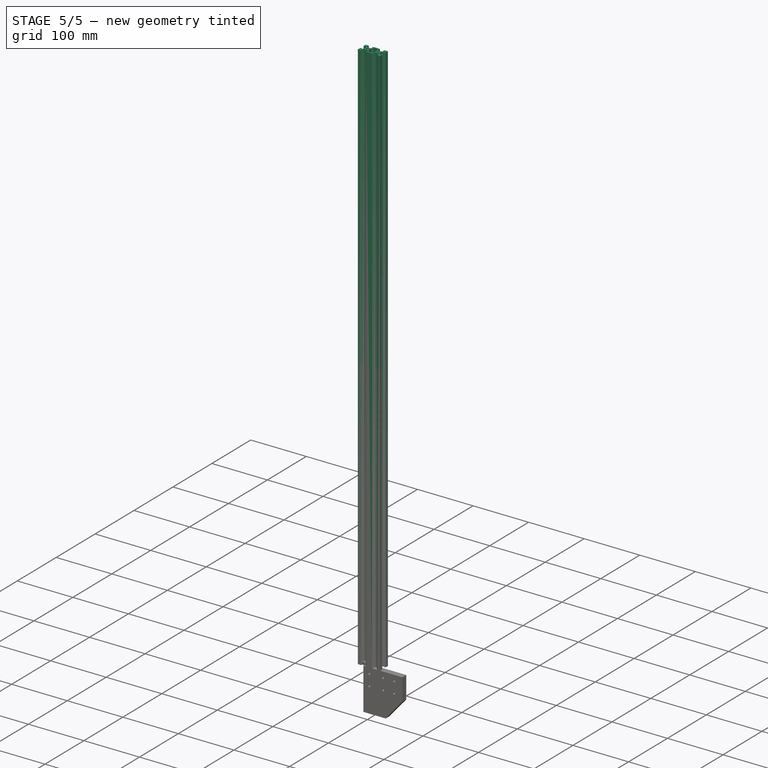
[diagram: stage 5 of 5 — iso view after this stage's code; geometry added in this stage tinted green]
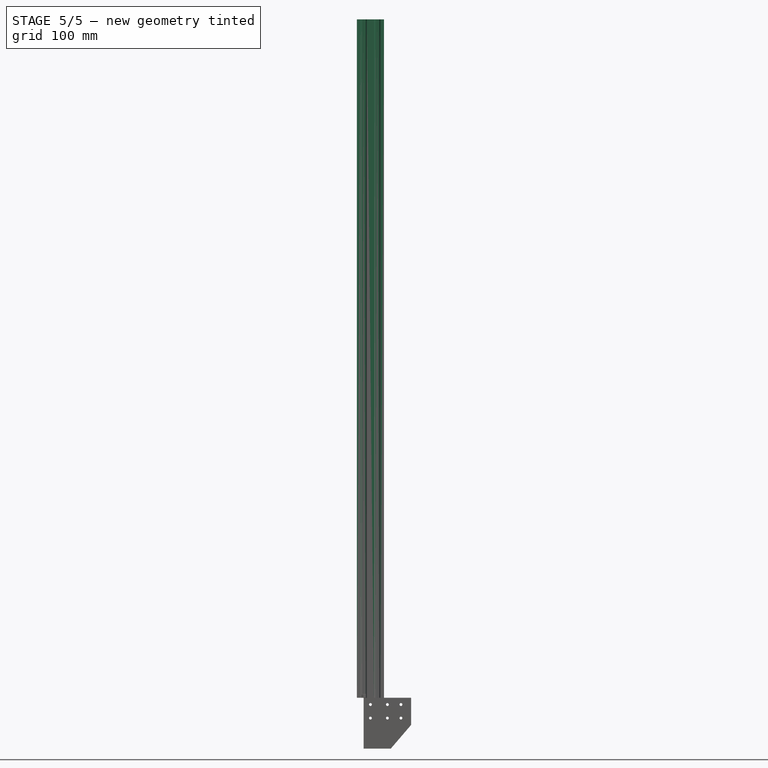
[diagram: stage 5 of 5 — front view after this stage's code; geometry added in this stage tinted green]
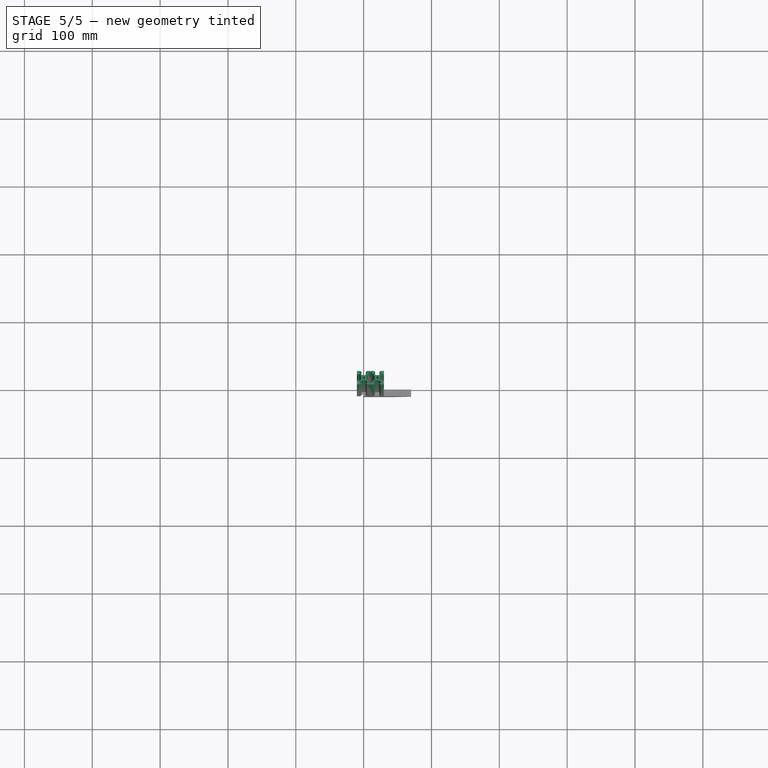
[diagram: stage 5 of 5 — top view after this stage's code; geometry added in this stage tinted green]
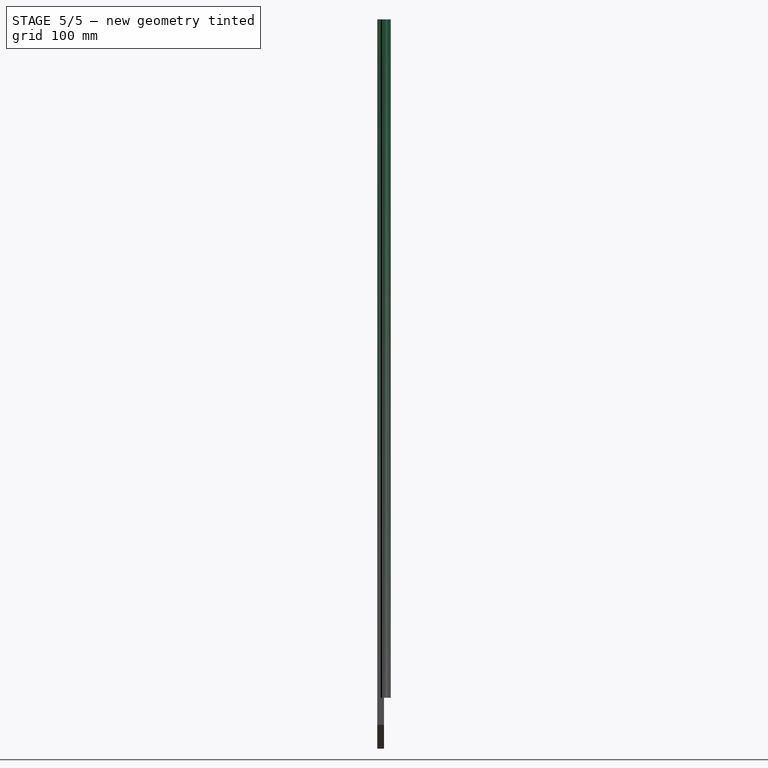
[diagram: stage 5 of 5 — right view after this stage's code; geometry added in this stage tinted green]
FEATURE [Sketcher::SketchObject] Sketch
  MapMode = 5
  Support = -> [XY_Plane001]
  sketch-geometry (102):
    g0: LineSegment StartX=0 StartY=3.72388 StartZ=0 EndX=0.176777 EndY=3.90066 EndZ=0
    g1: LineSegment StartX=0.176777 StartY=3.90066 StartZ=0 EndX=2.84 EndY=3.90066 EndZ=0
    g2: LineSegment StartX=2.84 StartY=3.90066 StartZ=0 EndX=5.49934 EndY=6.56 EndZ=0
    g3: LineSegment StartX=5.49934 StartY=6.56 StartZ=0 EndX=5.49934 EndY=8.2 EndZ=0
    g4: LineSegment StartX=5.49934 StartY=8.2 StartZ=0 EndX=3.1 EndY=8.2 EndZ=0
    g5: LineSegment StartX=3.1 StartY=8.2 StartZ=0 EndX=3.1 EndY=10 EndZ=0
    g6: LineSegment StartX=3.1 StartY=10 StartZ=0 EndX=16.9 EndY=10 EndZ=0
    g7: LineSegment StartX=7.29934 StartY=6.23868 StartZ=0 EndX=3.90066 EndY=2.84 EndZ=0
    g8: LineSegment StartX=3.90066 StartY=2.84 StartZ=0 EndX=3.90066 EndY=0.176777 EndZ=0
    g9: LineSegment StartX=3.90066 StartY=0.176777 StartZ=0 EndX=3.72388 EndY=0 EndZ=0
    g10: LineSegment StartX=0 StartY=3.72388 StartZ=0 EndX=-0.176777 EndY=3.90066 EndZ=0
    g11: LineSegment StartX=-0.176777 StartY=3.90066 StartZ=0 EndX=-2.84 EndY=3.90066 EndZ=0
    g12: LineSegment StartX=-2.84 StartY=3.90066 StartZ=0 EndX=-5.49934 EndY=6.56 EndZ=0
    g13: LineSegment StartX=-5.49934 StartY=6.56 StartZ=0 EndX=-5.49934 EndY=8.2 EndZ=0
    g14: LineSegment StartX=-5.49934 StartY=8.2 StartZ=0 EndX=-3.1 EndY=8.2 EndZ=0
    g15: LineSegment StartX=-3.1 StartY=8.2 StartZ=0 EndX=-3.1 EndY=10 EndZ=0
    g16: LineSegment StartX=-3.1 StartY=10 StartZ=0 EndX=-10 EndY=10 EndZ=0
    g17: LineSegment StartX=-10 StartY=10 StartZ=0 EndX=-10 EndY=3.1 EndZ=0
    g18: LineSegment StartX=-10 StartY=3.1 StartZ=0 EndX=-8.2 EndY=3.1 EndZ=0
    g19: LineSegment StartX=-8.2 StartY=3.1 StartZ=0 EndX=-8.2 EndY=5.49934 EndZ=0
    g20: LineSegment StartX=-8.2 StartY=5.49934 StartZ=0 EndX=-6.56 EndY=5.49934 EndZ=0
    g21: LineSegment StartX=-6.56 StartY=5.49934 StartZ=0 EndX=-3.90066 EndY=2.84 EndZ=0
    g22: LineSegment StartX=-3.90066 StartY=2.84 StartZ=0 EndX=-3.90066 EndY=0.176777 EndZ=0
    g23: LineSegment StartX=-3.90066 StartY=0.176777 StartZ=0 EndX=-3.72388 EndY=0 EndZ=0
    g24: LineSegment StartX=0 StartY=-3.72388 StartZ=0 EndX=0.176777 EndY=-3.90066 EndZ=0
    g25: LineSegment StartX=0.176777 StartY=-3.90066 StartZ=0 EndX=2.84 EndY=-3.90066 EndZ=0
    g26: LineSegment StartX=2.84 StartY=-3.90066 StartZ=0 EndX=5.49934 EndY=-6.56 EndZ=0
    g27: LineSegment StartX=5.49934 StartY=-6.56 StartZ=0 EndX=5.49934 EndY=-8.2 EndZ=0
    g28: LineSegment StartX=5.49934 StartY=-8.2 StartZ=0 EndX=3.1 EndY=-8.2 EndZ=0
    g29: LineSegment StartX=3.1 StartY=-8.2 StartZ=0 EndX=3.1 EndY=-10 EndZ=0
    g30: LineSegment StartX=3.1 StartY=-10 StartZ=0 EndX=16.9 EndY=-10 EndZ=0
    g31: LineSegment StartX=7.29934 StartY=-6.23868 StartZ=0 EndX=3.90066 EndY=-2.84 EndZ=0
    g32: LineSegment StartX=3.90066 StartY=-2.84 StartZ=0 EndX=3.90066 EndY=-0.176777 EndZ=0
    g33: LineSegment StartX=3.90066 StartY=-0.176777 StartZ=0 EndX=3.72388 EndY=0 EndZ=0
    g34: LineSegment StartX=0 StartY=-3.72388 StartZ=0 EndX=-0.176777 EndY=-3.90066 EndZ=0
    g35: LineSegment StartX=-0.176777 StartY=-3.90066 StartZ=0 EndX=-2.84 EndY=-3.90066 EndZ=0
    g36: LineSegment StartX=-2.84 StartY=-3.90066 StartZ=0 EndX=-5.49934 EndY=-6.56 EndZ=0
    g37: LineSegment StartX=-5.49934 StartY=-6.56 StartZ=0 EndX=-5.49934 EndY=-8.2 EndZ=0
    g38: LineSegment StartX=-5.49934 StartY=-8.2 StartZ=0 EndX=-3.1 EndY=-8.2 EndZ=0
    g39: LineSegment StartX=-3.1 StartY=-8.2 StartZ=0 EndX=-3.1 EndY=-10 EndZ=0
    g40: LineSegment StartX=-3.1 StartY=-10 StartZ=0 EndX=-10 EndY=-10 EndZ=0
    g41: LineSegment StartX=-10 StartY=-10 StartZ=0 EndX=-10 EndY=-3.1 EndZ=0
    g42: LineSegment StartX=-10 StartY=-3.1 StartZ=0 EndX=-8.2 EndY=-3.1 EndZ=0
    g43: LineSegment StartX=-8.2 StartY=-3.1 StartZ=0 EndX=-8.2 EndY=-5.49934 EndZ=0
    g44: LineSegment StartX=-8.2 StartY=-5.49934 StartZ=0 EndX=-6.56 EndY=-5.49934 EndZ=0
    g45: LineSegment StartX=-6.56 StartY=-5.49934 StartZ=0 EndX=-3.90066 EndY=-2.84 EndZ=0
    g46: LineSegment StartX=-3.90066 StartY=-2.84 StartZ=0 EndX=-3.90066 EndY=-0.176777 EndZ=0
    g47: LineSegment StartX=-3.90066 StartY=-0.176777 StartZ=0 EndX=-3.72388 EndY=0 EndZ=0
    g48: Circle CenterX=0 CenterY=0 CenterZ=0 NormalX=0 NormalY=0 NormalZ=1 AngleXU=0 Radius=2.1
    g49: LineSegment StartX=20 StartY=3.72388 StartZ=0 EndX=19.8232 EndY=3.90066 EndZ=0
    g50: LineSegment StartX=19.8232 StartY=3.90066 StartZ=0 EndX=17.16 EndY=3.90066 EndZ=0
    g51: LineSegment StartX=17.16 StartY=3.90066 StartZ=0 EndX=14.5007 EndY=6.56 EndZ=0
    g52: LineSegment StartX=14.5007 StartY=6.56 StartZ=0 EndX=14.5007 EndY=8.2 EndZ=0
    g53: LineSegment StartX=14.5007 StartY=8.2 StartZ=0 EndX=16.9 EndY=8.2 EndZ=0
    g54: LineSegment StartX=16.9 StartY=8.2 StartZ=0 EndX=16.9 EndY=10 EndZ=0
    g55: LineSegment StartX=12.7007 StartY=6.23868 StartZ=0 EndX=16.0993 EndY=2.84 EndZ=0
    g56: LineSegment StartX=16.0993 StartY=2.84 StartZ=0 EndX=16.0993 EndY=0.176777 EndZ=0
    g57: LineSegment StartX=16.0993 StartY=0.176777 StartZ=0 EndX=16.2761 EndY=3.6e-15 EndZ=0
    g58: LineSegment StartX=20 StartY=3.72388 StartZ=0 EndX=20.1768 EndY=3.90066 EndZ=0
    g59: LineSegment StartX=20.1768 StartY=3.90066 StartZ=0 EndX=22.84 EndY=3.90066 EndZ=0
    g60: LineSegment StartX=22.84 StartY=3.90066 StartZ=0 EndX=25.4993 EndY=6.56 EndZ=0
    g61: LineSegment StartX=25.4993 StartY=6.56 StartZ=0 EndX=25.4993 EndY=8.2 EndZ=0
    g62: LineSegment StartX=25.4993 StartY=8.2 StartZ=0 EndX=23.1 EndY=8.2 EndZ=0
    g63: LineSegment StartX=23.1 StartY=8.2 StartZ=0 EndX=23.1 EndY=10 EndZ=0
    g64: LineSegment StartX=23.1 StartY=10 StartZ=0 EndX=30 EndY=10 EndZ=0
    g65: LineSegment StartX=30 StartY=10 StartZ=0 EndX=30 EndY=3.1 EndZ=0
    g66: LineSegment StartX=30 StartY=3.1 StartZ=0 EndX=28.2 EndY=3.1 EndZ=0
    g67: LineSegment StartX=28.2 StartY=3.1 StartZ=0 EndX=28.2 EndY=5.49934 EndZ=0
    g68: LineSegment StartX=28.2 StartY=5.49934 StartZ=0 EndX=26.56 EndY=5.49934 EndZ=0
    g69: LineSegment StartX=26.56 StartY=5.49934 StartZ=0 EndX=23.9007 EndY=2.84 EndZ=0
    g70: LineSegment StartX=23.9007 StartY=2.84 StartZ=0 EndX=23.9007 EndY=0.176777 EndZ=0
    g71: LineSegment StartX=23.9007 StartY=0.176777 StartZ=0 EndX=23.7239 EndY=3.6e-15 EndZ=0
    g72: LineSegment StartX=20 StartY=-3.72388 StartZ=0 EndX=19.8232 EndY=-3.90066 EndZ=0
    g73: LineSegment StartX=19.8232 StartY=-3.90066 StartZ=0 EndX=17.16 EndY=-3.90066 EndZ=0
    g74: LineSegment StartX=17.16 StartY=-3.90066 StartZ=0 EndX=14.5007 EndY=-6.56 EndZ=0
    g75: LineSegment StartX=14.5007 StartY=-6.56 StartZ=0 EndX=14.5007 EndY=-8.2 EndZ=0
    g76: LineSegment StartX=14.5007 StartY=-8.2 StartZ=0 EndX=16.9 EndY=-8.2 EndZ=0
    g77: LineSegment StartX=16.9 StartY=-8.2 StartZ=0 EndX=16.9 EndY=-10 EndZ=0
    g78: LineSegment StartX=12.7007 StartY=-6.23868 StartZ=0 EndX=16.0993 EndY=-2.84 EndZ=0
    g79: LineSegment StartX=16.0993 StartY=-2.84 StartZ=0 EndX=16.0993 EndY=-0.176777 EndZ=0
    g80: LineSegment StartX=16.0993 StartY=-0.176777 StartZ=0 EndX=16.2761 EndY=3.6e-15 EndZ=0
    g81: LineSegment StartX=20 StartY=-3.72388 StartZ=0 EndX=20.1768 EndY=-3.90066 EndZ=0
    g82: LineSegment StartX=20.1768 StartY=-3.90066 StartZ=0 EndX=22.84 EndY=-3.90066 EndZ=0
    g83: LineSegment StartX=22.84 StartY=-3.90066 StartZ=0 EndX=25.4993 EndY=-6.56 EndZ=0
    g84: LineSegment StartX=25.4993 StartY=-6.56 StartZ=0 EndX=25.4993 EndY=-8.2 EndZ=0
    g85: LineSegment StartX=25.4993 StartY=-8.2 StartZ=0 EndX=23.1 EndY=-8.2 EndZ=0
    g86: LineSegment StartX=23.1 StartY=-8.2 StartZ=0 EndX=23.1 EndY=-10 EndZ=0
    g87: LineSegment StartX=23.1 StartY=-10 StartZ=0 EndX=30 EndY=-10 EndZ=0
    g88: LineSegment StartX=30 StartY=-10 StartZ=0 EndX=30 EndY=-3.1 EndZ=0
    g89: LineSegment StartX=30 StartY=-3.1 StartZ=0 EndX=28.2 EndY=-3.1 EndZ=0
    g90: LineSegment StartX=28.2 StartY=-3.1 StartZ=0 EndX=28.2 EndY=-5.49934 EndZ=0
    g91: LineSegment StartX=28.2 StartY=-5.49934 StartZ=0 EndX=26.56 EndY=-5.49934 EndZ=0
    g92: LineSegment StartX=26.56 StartY=-5.49934 StartZ=0 EndX=23.9007 EndY=-2.84 EndZ=0
    g93: LineSegment StartX=23.9007 StartY=-2.84 StartZ=0 EndX=23.9007 EndY=-0.176777 EndZ=0
    g94: LineSegment StartX=23.9007 StartY=-0.176777 StartZ=0 EndX=23.7239 EndY=3.6e-15 EndZ=0
    g95: Circle CenterX=20 CenterY=3.6e-15 CenterZ=0 NormalX=0 NormalY=0 NormalZ=1 AngleXU=0 Radius=2.1
    g96: LineSegment StartX=7.29934 StartY=-6.23868 StartZ=0 EndX=7.29934 EndY=-8.2 EndZ=0
    g97: LineSegment StartX=7.29934 StartY=-8.2 StartZ=0 EndX=12.7007 EndY=-8.2 EndZ=0
    g98: LineSegment StartX=12.7007 StartY=-8.2 StartZ=0 EndX=12.7007 EndY=-6.23868 EndZ=0
    g99: LineSegment StartX=7.29934 StartY=6.23868 StartZ=0 EndX=7.29934 EndY=8.2 EndZ=0
    g100: LineSegment StartX=7.29934 StartY=8.2 StartZ=0 EndX=12.7007 EndY=8.2 EndZ=0
    g101: LineSegment StartX=12.7007 StartY=8.2 StartZ=0 EndX=12.7007 EndY=6.23868 EndZ=0
  constraints (20):
    c: Block(g74)
    c: Block(g75)
    c: Block(g79)
    c: Block(g32)
    c: Block(g26)
    c: Block(g27)
    c: Coincident(g97,g96)
    c: Vertical(g96)
    c: Vertical(g98)
    c: Coincident(g98,g97)
    c: Horizontal(g97)
    c: Horizontal(g100)
    c: Parallel(g26,g31)
    c: Parallel(g74,g78)
    c: DistanceX(g27,g96) = 1.8
    c: Coincident(g31,g96)
    c: Coincident(g32,g31)
    c: DistanceX(g97,g75) = 1.8
    c: Coincident(g78,g98)
    c: Coincident(g79,g78)
FEATURE [PartDesign::Pad] Pad
  Direction = (1,1,1)
  Length = 1000
  Length2 = 100
  Profile = -> Sketch
  Type = 0
FEATURE [PartDesign::Chamfer] Chamfer
  Angle = 45
  Base = -> Pad [Edge146,Edge143,Edge107,Edge182,Edge101,Edge65,Edge59,Edge23,Edge20,Edge230,Edge188,Edge224]
  BaseFeature = -> Pad
  ChamferType = 2
  FlipDirection = false
  Size = 1.7
  Size2 = 1
  SupportTransform = false
FEATURE [PartDesign::Fillet] Fillet
  Base = -> Chamfer [Edge288,Edge256,Edge263,Edge295]
  BaseFeature = -> Chamfer
  Radius = 0.2
  SupportTransform = false
FEATURE [PartDesign::Body] Body
  Group = -> [Sketch,Pad,Chamfer,Fillet]
  Origin = -> Origin001
  Tip = -> Fillet
FEATURE [App::Part] Part
  Group = -> [Body]
  Origin = -> Origin
  Placement = pos=(0,0,0) rot=(0,1,0;1.5708rad)
FEATURE [Sketcher::SketchObject] Sketch001
  MapMode = 5
  Support = -> [XY_Plane003]
  sketch-geometry (102):
    g0: LineSegment StartX=0 StartY=3.72388 StartZ=0 EndX=0.176777 EndY=3.90066 EndZ=0
    g1: LineSegment StartX=0.176777 StartY=3.90066 StartZ=0 EndX=2.84 EndY=3.90066 EndZ=0
    g2: LineSegment StartX=2.84 StartY=3.90066 StartZ=0 EndX=5.49934 EndY=6.56 EndZ=0
    g3: LineSegment StartX=5.49934 StartY=6.56 StartZ=0 EndX=5.49934 EndY=8.2 EndZ=0
    g4: LineSegment StartX=5.49934 StartY=8.2 StartZ=0 EndX=3.1 EndY=8.2 EndZ=0
    g5: LineSegment StartX=3.1 StartY=8.2 StartZ=0 EndX=3.1 EndY=10 EndZ=0
    g6: LineSegment StartX=3.1 StartY=10 StartZ=0 EndX=16.9 EndY=10 EndZ=0
    g7: LineSegment StartX=7.29934 StartY=6.23868 StartZ=0 EndX=3.90066 EndY=2.84 EndZ=0
    g8: LineSegment StartX=3.90066 StartY=2.84 StartZ=0 EndX=3.90066 EndY=0.176777 EndZ=0
    g9: LineSegment StartX=3.90066 StartY=0.176777 StartZ=0 EndX=3.72388 EndY=0 EndZ=0
    g10: LineSegment StartX=0 StartY=3.72388 StartZ=0 EndX=-0.176777 EndY=3.90066 EndZ=0
    g11: LineSegment StartX=-0.176777 StartY=3.90066 StartZ=0 EndX=-2.84 EndY=3.90066 EndZ=0
    g12: LineSegment StartX=-2.84 StartY=3.90066 StartZ=0 EndX=-5.49934 EndY=6.56 EndZ=0
    g13: LineSegment StartX=-5.49934 StartY=6.56 StartZ=0 EndX=-5.49934 EndY=8.2 EndZ=0
    g14: LineSegment StartX=-5.49934 StartY=8.2 StartZ=0 EndX=-3.1 EndY=8.2 EndZ=0
    g15: LineSegment StartX=-3.1 StartY=8.2 StartZ=0 EndX=-3.1 EndY=10 EndZ=0
    g16: LineSegment StartX=-3.1 StartY=10 StartZ=0 EndX=-10 EndY=10 EndZ=0
    g17: LineSegment StartX=-10 StartY=10 StartZ=0 EndX=-10 EndY=3.1 EndZ=0
    g18: LineSegment StartX=-10 StartY=3.1 StartZ=0 EndX=-8.2 EndY=3.1 EndZ=0
    g19: LineSegment StartX=-8.2 StartY=3.1 StartZ=0 EndX=-8.2 EndY=5.49934 EndZ=0
    g20: LineSegment StartX=-8.2 StartY=5.49934 StartZ=0 EndX=-6.56 EndY=5.49934 EndZ=0
    g21: LineSegment StartX=-6.56 StartY=5.49934 StartZ=0 EndX=-3.90066 EndY=2.84 EndZ=0
    g22: LineSegment StartX=-3.90066 StartY=2.84 StartZ=0 EndX=-3.90066 EndY=0.176777 EndZ=0
    g23: LineSegment StartX=-3.90066 StartY=0.176777 StartZ=0 EndX=-3.72388 EndY=0 EndZ=0
    g24: LineSegment StartX=0 StartY=-3.72388 StartZ=0 EndX=0.176777 EndY=-3.90066 EndZ=0
    g25: LineSegment StartX=0.176777 StartY=-3.90066 StartZ=0 EndX=2.84 EndY=-3.90066 EndZ=0
    g26: LineSegment StartX=2.84 StartY=-3.90066 StartZ=0 EndX=5.49934 EndY=-6.56 EndZ=0
    g27: LineSegment StartX=5.49934 StartY=-6.56 StartZ=0 EndX=5.49934 EndY=-8.2 EndZ=0
    g28: LineSegment StartX=5.49934 StartY=-8.2 StartZ=0 EndX=3.1 EndY=-8.2 EndZ=0
    g29: LineSegment StartX=3.1 StartY=-8.2 StartZ=0 EndX=3.1 EndY=-10 EndZ=0
    g30: LineSegment StartX=3.1 StartY=-10 StartZ=0 EndX=16.9 EndY=-10 EndZ=0
    g31: LineSegment StartX=7.29934 StartY=-6.23868 StartZ=0 EndX=3.90066 EndY=-2.84 EndZ=0
    g32: LineSegment StartX=3.90066 StartY=-2.84 StartZ=0 EndX=3.90066 EndY=-0.176777 EndZ=0
    g33: LineSegment StartX=3.90066 StartY=-0.176777 StartZ=0 EndX=3.72388 EndY=0 EndZ=0
    g34: LineSegment StartX=0 StartY=-3.72388 StartZ=0 EndX=-0.176777 EndY=-3.90066 EndZ=0
    g35: LineSegment StartX=-0.176777 StartY=-3.90066 StartZ=0 EndX=-2.84 EndY=-3.90066 EndZ=0
    g36: LineSegment StartX=-2.84 StartY=-3.90066 StartZ=0 EndX=-5.49934 EndY=-6.56 EndZ=0
    g37: LineSegment StartX=-5.49934 StartY=-6.56 StartZ=0 EndX=-5.49934 EndY=-8.2 EndZ=0
    g38: LineSegment StartX=-5.49934 StartY=-8.2 StartZ=0 EndX=-3.1 EndY=-8.2 EndZ=0
    g39: LineSegment StartX=-3.1 StartY=-8.2 StartZ=0 EndX=-3.1 EndY=-10 EndZ=0
    g40: LineSegment StartX=-3.1 StartY=-10 StartZ=0 EndX=-10 EndY=-10 EndZ=0
    g41: LineSegment StartX=-10 StartY=-10 StartZ=0 EndX=-10 EndY=-3.1 EndZ=0
    g42: LineSegment StartX=-10 StartY=-3.1 StartZ=0 EndX=-8.2 EndY=-3.1 EndZ=0
    g43: LineSegment StartX=-8.2 StartY=-3.1 StartZ=0 EndX=-8.2 EndY=-5.49934 EndZ=0
    g44: LineSegment StartX=-8.2 StartY=-5.49934 StartZ=0 EndX=-6.56 EndY=-5.49934 EndZ=0
    g45: LineSegment StartX=-6.56 StartY=-5.49934 StartZ=0 EndX=-3.90066 EndY=-2.84 EndZ=0
    g46: LineSegment StartX=-3.90066 StartY=-2.84 StartZ=0 EndX=-3.90066 EndY=-0.176777 EndZ=0
    g47: LineSegment StartX=-3.90066 StartY=-0.176777 StartZ=0 EndX=-3.72388 EndY=0 EndZ=0
    g48: Circle CenterX=0 CenterY=0 CenterZ=0 NormalX=0 NormalY=0 NormalZ=1 AngleXU=0 Radius=2.1
    g49: LineSegment StartX=20 StartY=3.72388 StartZ=0 EndX=19.8232 EndY=3.90066 EndZ=0
    g50: LineSegment StartX=19.8232 StartY=3.90066 StartZ=0 EndX=17.16 EndY=3.90066 EndZ=0
    g51: LineSegment StartX=17.16 StartY=3.90066 StartZ=0 EndX=14.5007 EndY=6.56 EndZ=0
    g52: LineSegment StartX=14.5007 StartY=6.56 StartZ=0 EndX=14.5007 EndY=8.2 EndZ=0
    g53: LineSegment StartX=14.5007 StartY=8.2 StartZ=0 EndX=16.9 EndY=8.2 EndZ=0
    g54: LineSegment StartX=16.9 StartY=8.2 StartZ=0 EndX=16.9 EndY=10 EndZ=0
    g55: LineSegment StartX=12.7007 StartY=6.23868 StartZ=0 EndX=16.0993 EndY=2.84 EndZ=0
    g56: LineSegment StartX=16.0993 StartY=2.84 StartZ=0 EndX=16.0993 EndY=0.176777 EndZ=0
    g57: LineSegment StartX=16.0993 StartY=0.176777 StartZ=0 EndX=16.2761 EndY=3.6e-15 EndZ=0
    g58: LineSegment StartX=20 StartY=3.72388 StartZ=0 EndX=20.1768 EndY=3.90066 EndZ=0
    g59: LineSegment StartX=20.1768 StartY=3.90066 StartZ=0 EndX=22.84 EndY=3.90066 EndZ=0
    g60: LineSegment StartX=22.84 StartY=3.90066 StartZ=0 EndX=25.4993 EndY=6.56 EndZ=0
    g61: LineSegment StartX=25.4993 StartY=6.56 StartZ=0 EndX=25.4993 EndY=8.2 EndZ=0
    g62: LineSegment StartX=25.4993 StartY=8.2 StartZ=0 EndX=23.1 EndY=8.2 EndZ=0
    g63: LineSegment StartX=23.1 StartY=8.2 StartZ=0 EndX=23.1 EndY=10 EndZ=0
    g64: LineSegment StartX=23.1 StartY=10 StartZ=0 EndX=30 EndY=10 EndZ=0
    g65: LineSegment StartX=30 StartY=10 StartZ=0 EndX=30 EndY=3.1 EndZ=0
    g66: LineSegment StartX=30 StartY=3.1 StartZ=0 EndX=28.2 EndY=3.1 EndZ=0
    g67: LineSegment StartX=28.2 StartY=3.1 StartZ=0 EndX=28.2 EndY=5.49934 EndZ=0
    g68: LineSegment StartX=28.2 StartY=5.49934 StartZ=0 EndX=26.56 EndY=5.49934 EndZ=0
    g69: LineSegment StartX=26.56 StartY=5.49934 StartZ=0 EndX=23.9007 EndY=2.84 EndZ=0
    g70: LineSegment StartX=23.9007 StartY=2.84 StartZ=0 EndX=23.9007 EndY=0.176777 EndZ=0
    g71: LineSegment StartX=23.9007 StartY=0.176777 StartZ=0 EndX=23.7239 EndY=3.6e-15 EndZ=0
    g72: LineSegment StartX=20 StartY=-3.72388 StartZ=0 EndX=19.8232 EndY=-3.90066 EndZ=0
    g73: LineSegment StartX=19.8232 StartY=-3.90066 StartZ=0 EndX=17.16 EndY=-3.90066 EndZ=0
    g74: LineSegment StartX=17.16 StartY=-3.90066 StartZ=0 EndX=14.5007 EndY=-6.56 EndZ=0
    g75: LineSegment StartX=14.5007 StartY=-6.56 StartZ=0 EndX=14.5007 EndY=-8.2 EndZ=0
    g76: LineSegment StartX=14.5007 StartY=-8.2 StartZ=0 EndX=16.9 EndY=-8.2 EndZ=0
    g77: LineSegment StartX=16.9 StartY=-8.2 StartZ=0 EndX=16.9 EndY=-10 EndZ=0
    g78: LineSegment StartX=12.7007 StartY=-6.23868 StartZ=0 EndX=16.0993 EndY=-2.84 EndZ=0
    g79: LineSegment StartX=16.0993 StartY=-2.84 StartZ=0 EndX=16.0993 EndY=-0.176777 EndZ=0
    g80: LineSegment StartX=16.0993 StartY=-0.176777 StartZ=0 EndX=16.2761 EndY=3.6e-15 EndZ=0
    g81: LineSegment StartX=20 StartY=-3.72388 StartZ=0 EndX=20.1768 EndY=-3.90066 EndZ=0
    g82: LineSegment StartX=20.1768 StartY=-3.90066 StartZ=0 EndX=22.84 EndY=-3.90066 EndZ=0
    g83: LineSegment StartX=22.84 StartY=-3.90066 StartZ=0 EndX=25.4993 EndY=-6.56 EndZ=0
    g84: LineSegment StartX=25.4993 StartY=-6.56 StartZ=0 EndX=25.4993 EndY=-8.2 EndZ=0
    g85: LineSegment StartX=25.4993 StartY=-8.2 StartZ=0 EndX=23.1 EndY=-8.2 EndZ=0
    g86: LineSegment StartX=23.1 StartY=-8.2 StartZ=0 EndX=23.1 EndY=-10 EndZ=0
    g87: LineSegment StartX=23.1 StartY=-10 StartZ=0 EndX=30 EndY=-10 EndZ=0
    g88: LineSegment StartX=30 StartY=-10 StartZ=0 EndX=30 EndY=-3.1 EndZ=0
    g89: LineSegment StartX=30 StartY=-3.1 StartZ=0 EndX=28.2 EndY=-3.1 EndZ=0
    g90: LineSegment StartX=28.2 StartY=-3.1 StartZ=0 EndX=28.2 EndY=-5.49934 EndZ=0
    g91: LineSegment StartX=28.2 StartY=-5.49934 StartZ=0 EndX=26.56 EndY=-5.49934 EndZ=0
    g92: LineSegment StartX=26.56 StartY=-5.49934 StartZ=0 EndX=23.9007 EndY=-2.84 EndZ=0
    g93: LineSegment StartX=23.9007 StartY=-2.84 StartZ=0 EndX=23.9007 EndY=-0.176777 EndZ=0
    g94: LineSegment StartX=23.9007 StartY=-0.176777 StartZ=0 EndX=23.7239 EndY=3.6e-15 EndZ=0
    g95: Circle CenterX=20 CenterY=3.6e-15 CenterZ=0 NormalX=0 NormalY=0 NormalZ=1 AngleXU=0 Radius=2.1
    g96: LineSegment StartX=7.29934 StartY=-6.23868 StartZ=0 EndX=7.29934 EndY=-8.2 EndZ=0
    g97: LineSegment StartX=7.29934 StartY=-8.2 StartZ=0 EndX=12.7007 EndY=-8.2 EndZ=0
    g98: LineSegment StartX=12.7007 StartY=-8.2 StartZ=0 EndX=12.7007 EndY=-6.23868 EndZ=0
    g99: LineSegment StartX=7.29934 StartY=6.23868 StartZ=0 EndX=7.29934 EndY=8.2 EndZ=0
    g100: LineSegment StartX=7.29934 StartY=8.2 StartZ=0 EndX=12.7007 EndY=8.2 EndZ=0
    g101: LineSegment StartX=12.7007 StartY=8.2 StartZ=0 EndX=12.7007 EndY=6.23868 EndZ=0
  constraints (20):
    c: Block(g74)
    c: Block(g75)
    c: Block(g79)
    c: Block(g32)
    c: Block(g26)
    c: Block(g27)
    c: Coincident(g97,g96)
    c: Vertical(g96)
    c: Vertical(g98)
    c: Coincident(g98,g97)
    c: Horizontal(g97)
    c: Horizontal(g100)
    c: Parallel(g26,g31)
    c: Parallel(g74,g78)
    c: DistanceX(g27,g96) = 1.8
    c: Coincident(g31,g96)
    c: Coincident(g32,g31)
    c: DistanceX(g97,g75) = 1.8
    c: Coincident(g78,g98)
    c: Coincident(g79,g78)
FEATURE [PartDesign::Pad] Pad001
  Direction = (1,1,1)
  Length = 1000
  Length2 = 100
  Profile = -> Sketch001
  Type = 0
FEATURE [PartDesign::Chamfer] Chamfer001
  Angle = 45
  Base = -> Pad001 [Edge146,Edge143,Edge107,Edge182,Edge101,Edge65,Edge59,Edge23,Edge20,Edge230,Edge188,Edge224]
  BaseFeature = -> Pad001
  ChamferType = 2
  FlipDirection = false
  Size = 1.7
  Size2 = 1
  SupportTransform = false
FEATURE [PartDesign::Fillet] Fillet001
  Base = -> Chamfer001 [Edge288,Edge256,Edge263,Edge295]
  BaseFeature = -> Chamfer001
  Radius = 0.2
  SupportTransform = false
FEATURE [PartDesign::Fillet] Fillet002
  Base = -> Chamfer002 [Edge288,Edge256,Edge263,Edge295]
  BaseFeature = -> Chamfer002
  Radius = 0.2
  SupportTransform = false
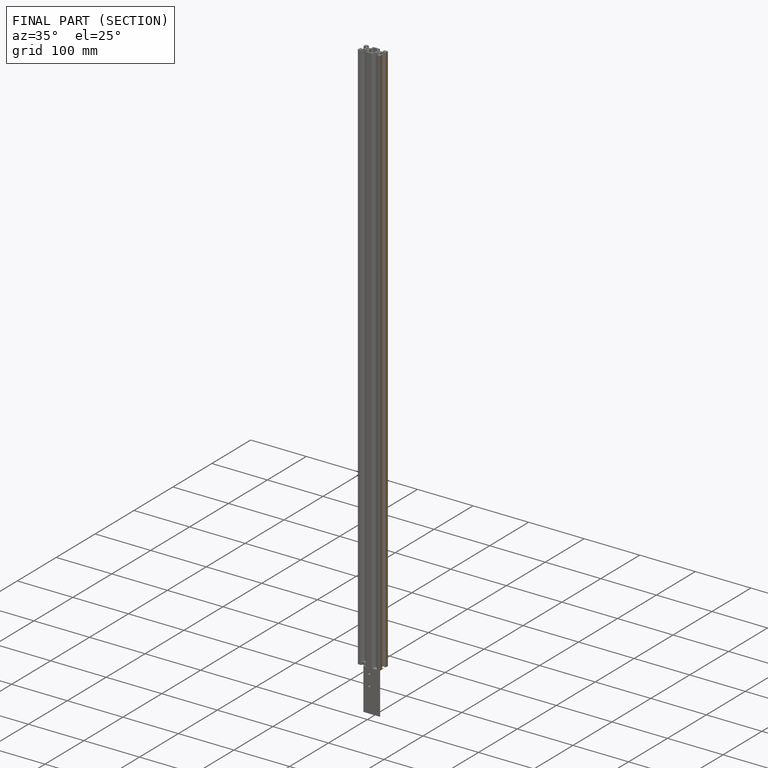
[diagram: finished part — half-section view (interior)]
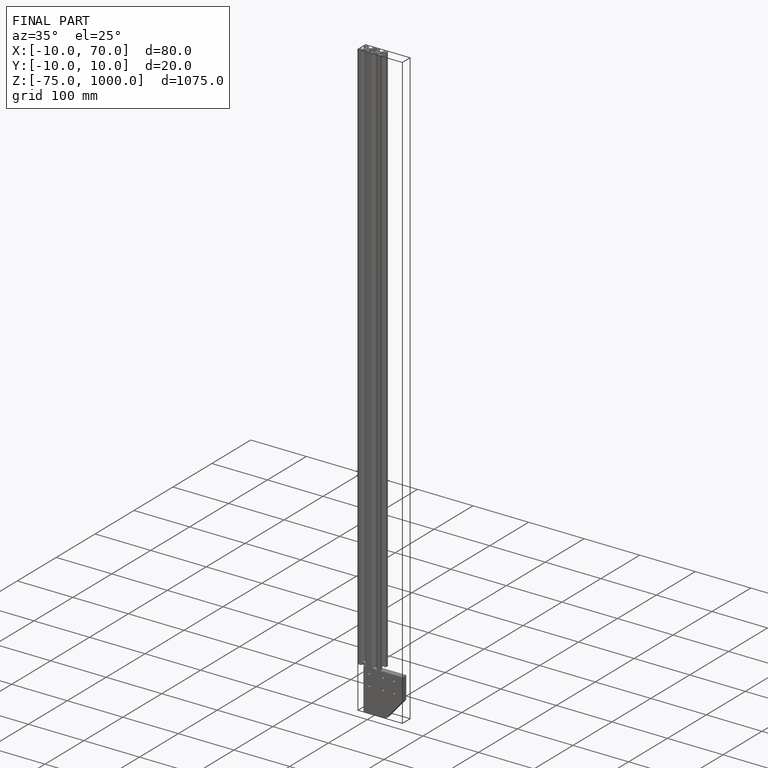
[diagram: finished part — iso view with bounding-box wireframe]
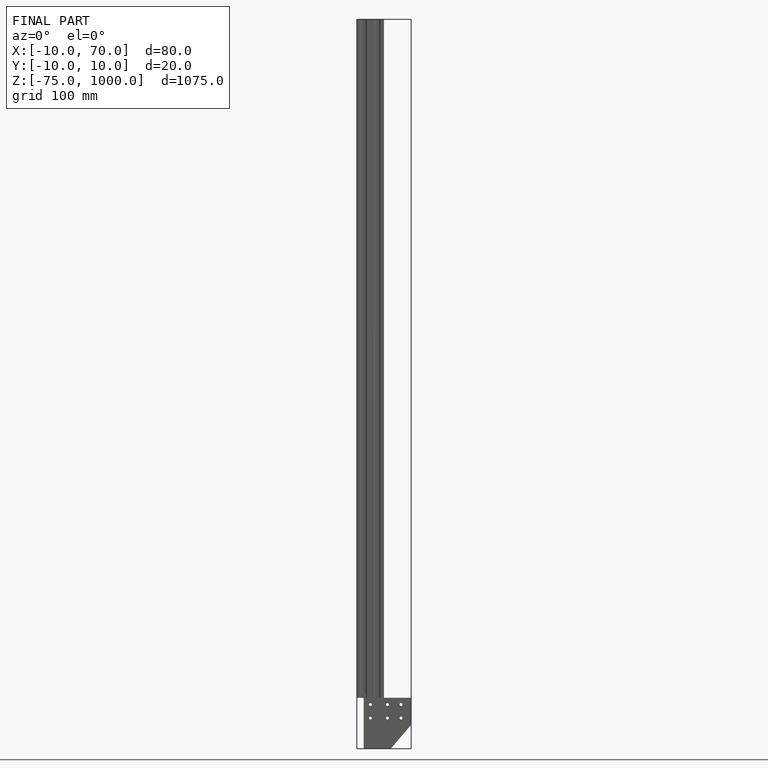
[diagram: finished part — front view with bounding-box wireframe]
